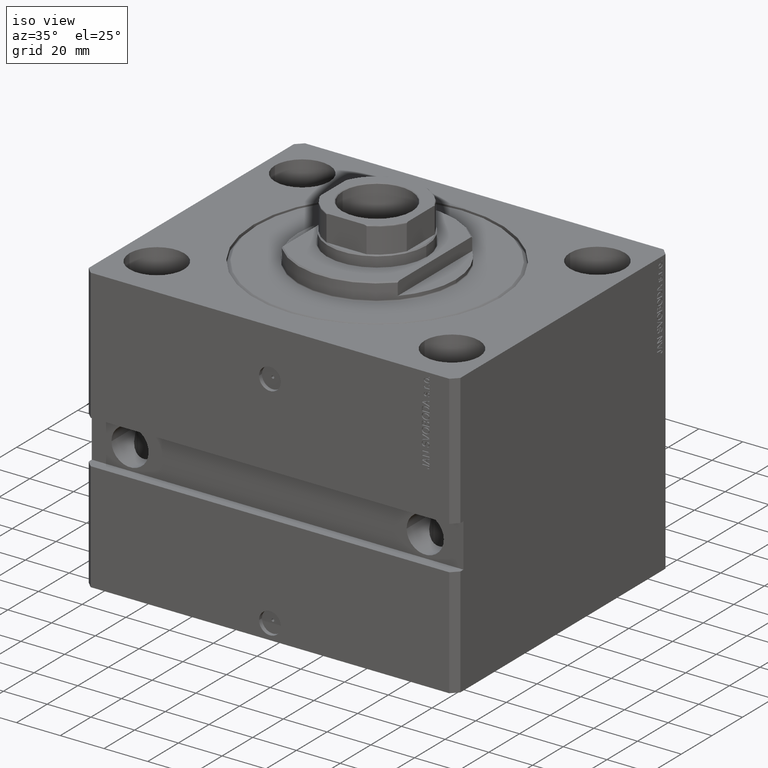
[diagram: clean part render]
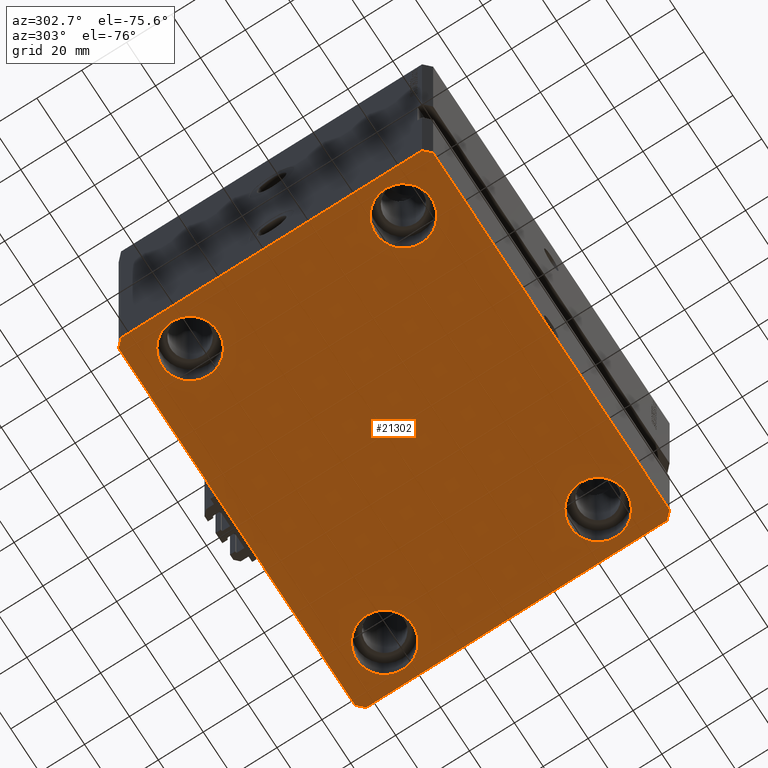
[diagram: tour spotlight — one face highlighted and labeled with its STEP entity id]
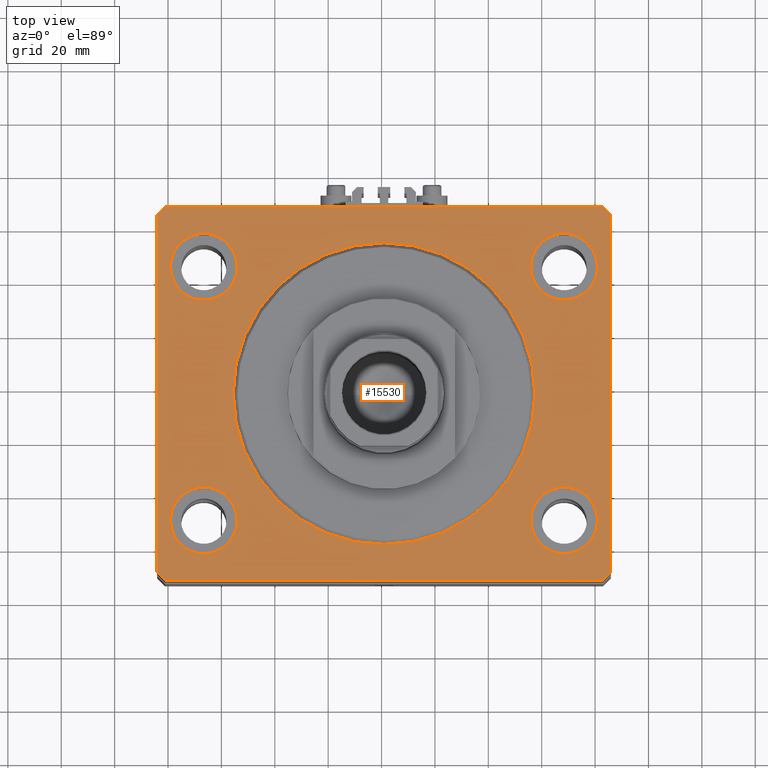
[diagram: tour spotlight — one face highlighted and labeled with its STEP entity id]
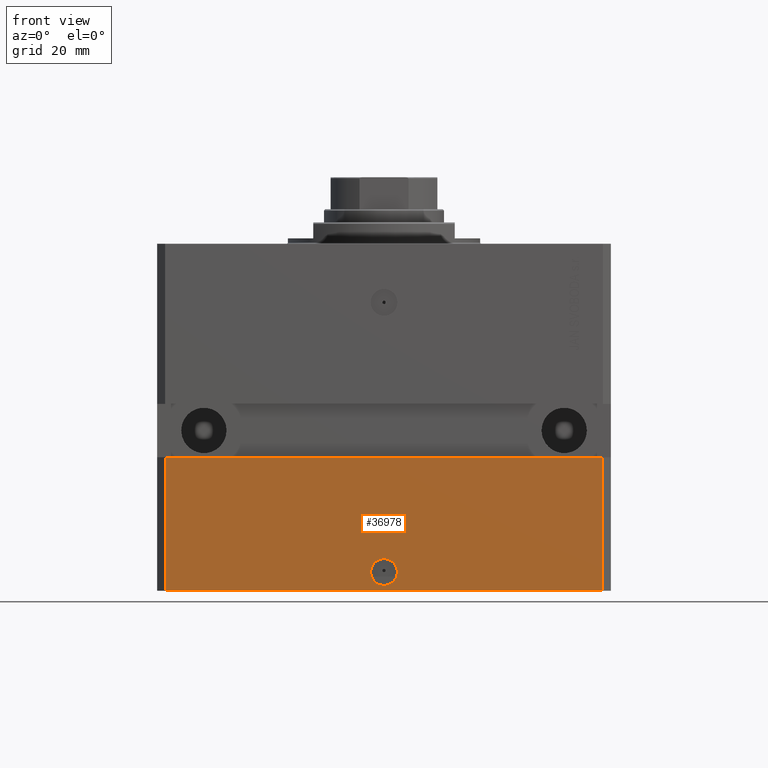
[diagram: tour spotlight — one face highlighted and labeled with its STEP entity id]
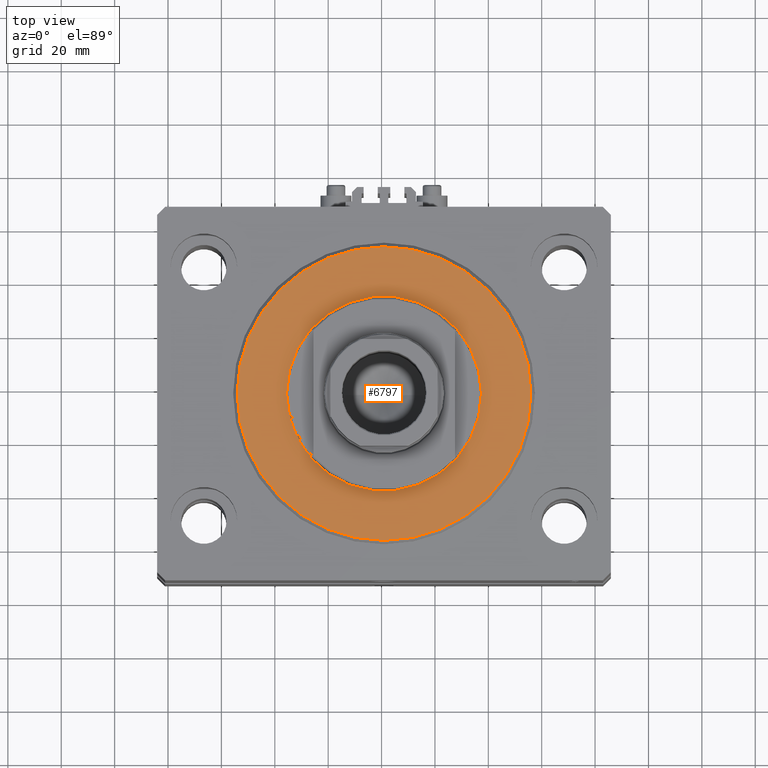
[diagram: tour spotlight — one face highlighted and labeled with its STEP entity id]
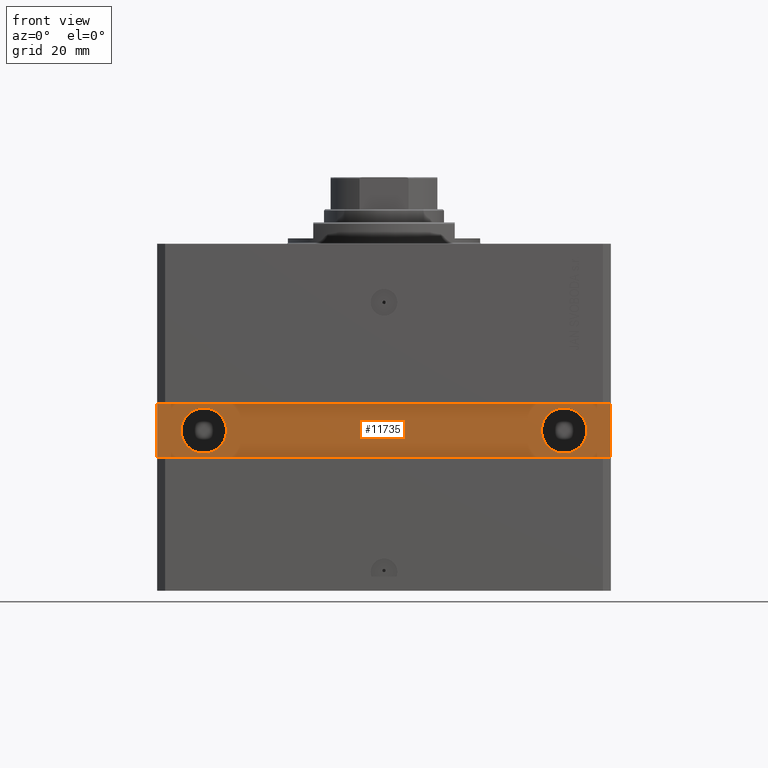
[diagram: tour spotlight — one face highlighted and labeled with its STEP entity id]
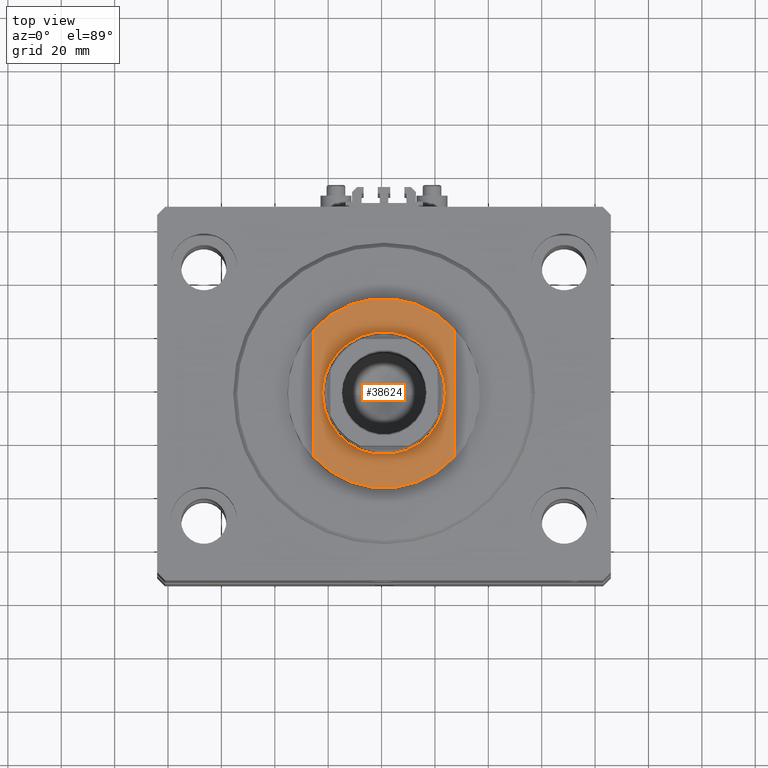
[diagram: tour spotlight — one face highlighted and labeled with its STEP entity id]
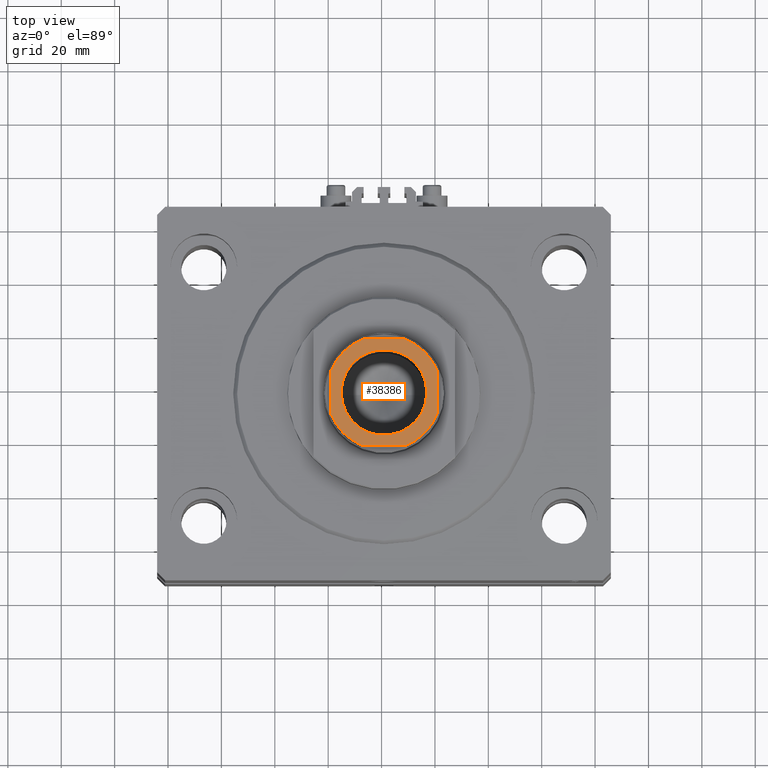
[diagram: tour spotlight — one face highlighted and labeled with its STEP entity id]
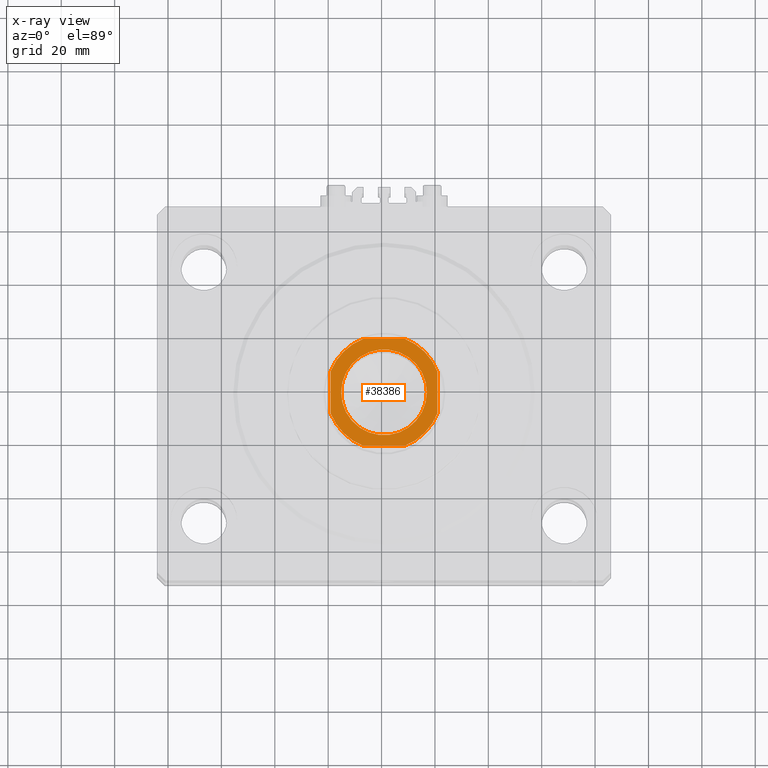
[diagram: x-ray of the same camera — body ghosted, this tour face saturated]
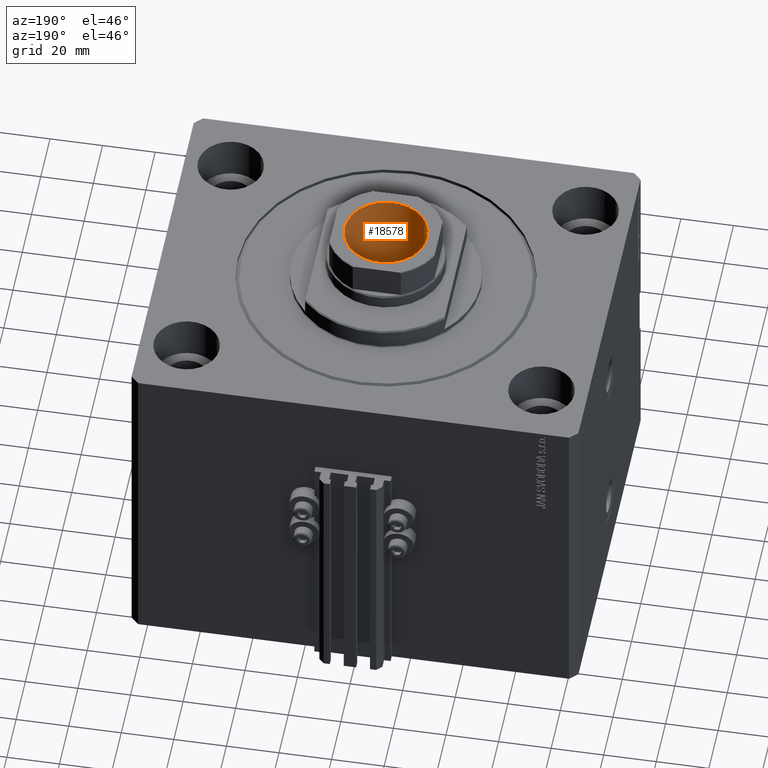
[diagram: tour spotlight — one face highlighted and labeled with its STEP entity id]
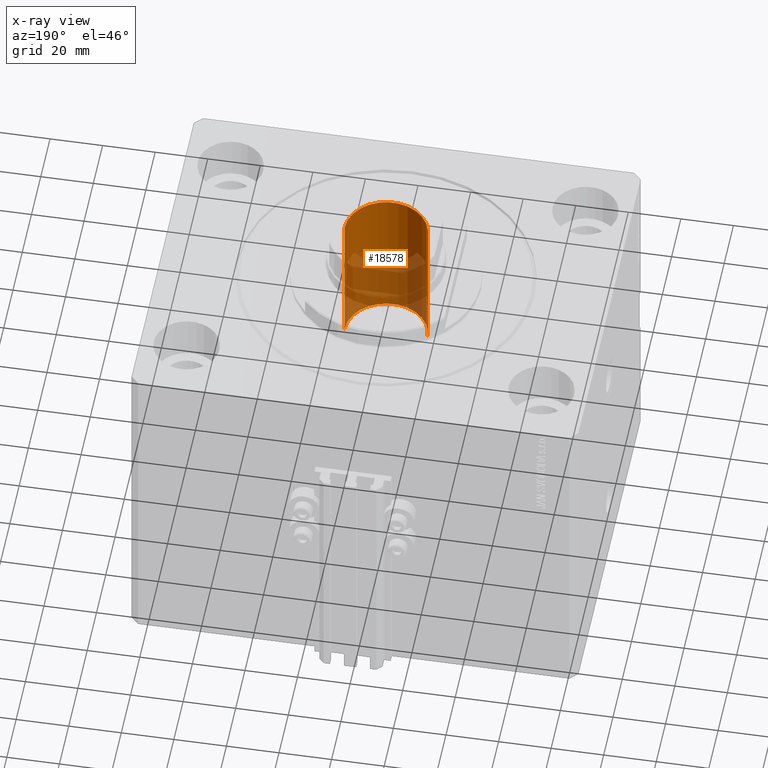
[diagram: x-ray of the same camera — body ghosted, this tour face saturated]
A machine part: a face-by-face anatomy tour. The part has 1103 B-rep faces; the first image is the clean iso view, then the 8 largest visible faces are spotlighted one at a time (largest first), each with its STEP entity span.

Face 1 — auxiliary view, entity #21302. In plain terms, the highlighted planar face has unit normal (0, 0, 1).
Definition (entity closure, byte-faithful):
#126 = CIRCLE ( 'NONE', #14240, 12.49999999999999645 ) ;
#755 = VERTEX_POINT ( 'NONE', #33347 ) ;
#820 = EDGE_CURVE ( 'NONE', #6404, #30067, #14982, .T. ) ;
#1061 = VECTOR ( 'NONE', #23541, 1000.000000000000114 ) ;
#2871 = LINE ( 'NONE', #24935, #35443 ) ;
#3644 = CIRCLE ( 'NONE', #15394, 12.49999999999999645 ) ;
#3896 = CARTESIAN_POINT ( 'NONE',  ( -80.00000000000000000, -47.50000000000000000, -130.0000000000000000 ) ) ;
#4188 = DIRECTION ( 'NONE',  ( 1.000000000000000000, 0.000000000000000000, 0.000000000000000000 ) ) ;
#4692 = DIRECTION ( 'NONE',  ( -0.000000000000000000, -0.000000000000000000, 1.000000000000000000 ) ) ;
#4784 = DIRECTION ( 'NONE',  ( 1.000000000000000000, 0.000000000000000000, 0.000000000000000000 ) ) ;
#5172 = CARTESIAN_POINT ( 'NONE',  ( 85.00000000000001421, -66.99999999999998579, -130.0000000000000000 ) ) ;
#5629 = ORIENTED_EDGE ( 'NONE', *, *, #44657, .F. ) ;
#6145 = EDGE_LOOP ( 'NONE', ( #17547, #14010, #34338, #14509, #13048, #22046, #6681, #5629 ) ) ;
#6204 = LINE ( 'NONE', #40716, #15349 ) ;
#6404 = VERTEX_POINT ( 'NONE', #10271 ) ;
#6652 = EDGE_LOOP ( 'NONE', ( #33247, #41164 ) ) ;
#6681 = ORIENTED_EDGE ( 'NONE', *, *, #14818, .F. ) ;
#6751 = DIRECTION ( 'NONE',  ( 0.000000000000000000, 0.000000000000000000, 1.000000000000000000 ) ) ;
#6989 = FACE_BOUND ( 'NONE', #6652, .T. ) ;
#7028 = DIRECTION ( 'NONE',  ( -0.000000000000000000, -0.000000000000000000, 1.000000000000000000 ) ) ;
#7244 = EDGE_CURVE ( 'NONE', #37119, #44837, #14453, .T. ) ;
#8643 = CARTESIAN_POINT ( 'NONE',  ( 55.00000000000000711, -47.50000000000000000, -130.0000000000000000 ) ) ;
#8830 = VERTEX_POINT ( 'NONE', #27813 ) ;
#9538 = CARTESIAN_POINT ( 'NONE',  ( -67.50000000000000000, 47.50000000000000000, -130.0000000000000000 ) ) ;
#9997 = CARTESIAN_POINT ( 'NONE',  ( -55.00000000000000711, -47.50000000000000000, -130.0000000000000000 ) ) ;
#10134 = DIRECTION ( 'NONE',  ( 0.7071067811865459074, 0.7071067811865491270, 0.000000000000000000 ) ) ;
#10271 = CARTESIAN_POINT ( 'NONE',  ( -82.00000000000001421, -70.00000000000000000, -130.0000000000000000 ) ) ;
#10525 = CARTESIAN_POINT ( 'NONE',  ( 67.50000000000000000, 47.50000000000001421, -130.0000000000000000 ) ) ;
#10552 = CIRCLE ( 'NONE', #25409, 12.49999999999999645 ) ;
#10770 = CARTESIAN_POINT ( 'NONE',  ( -82.00000000000000000, 70.00000000000000000, -130.0000000000000000 ) ) ;
#11248 = DIRECTION ( 'NONE',  ( -0.000000000000000000, -0.000000000000000000, 1.000000000000000000 ) ) ;
#11745 = CIRCLE ( 'NONE', #25797, 12.49999999999999645 ) ;
#11852 = CARTESIAN_POINT ( 'NONE',  ( -85.00000000000001421, -67.00000000000000000, -130.0000000000000000 ) ) ;
#11954 = EDGE_CURVE ( 'NONE', #41922, #8830, #3644, .T. ) ;
#12265 = AXIS2_PLACEMENT_3D ( 'NONE', #45113, #19410, #34815 ) ;
#12540 = CARTESIAN_POINT ( 'NONE',  ( 67.50000000000000000, -47.50000000000000000, -130.0000000000000000 ) ) ;
#13048 = ORIENTED_EDGE ( 'NONE', *, *, #820, .F. ) ;
#13160 = DIRECTION ( 'NONE',  ( 1.000000000000000000, 0.000000000000000000, 0.000000000000000000 ) ) ;
#13215 = VERTEX_POINT ( 'NONE', #36085 ) ;
#13689 = AXIS2_PLACEMENT_3D ( 'NONE', #32804, #11248, #44298 ) ;
#14010 = ORIENTED_EDGE ( 'NONE', *, *, #30799, .F. ) ;
#14206 = VERTEX_POINT ( 'NONE', #46308 ) ;
#14240 = AXIS2_PLACEMENT_3D ( 'NONE', #12540, #4692, #38979 ) ;
#14264 = VECTOR ( 'NONE', #10134, 1000.000000000000000 ) ;
#14453 = CIRCLE ( 'NONE', #13689, 12.49999999999999645 ) ;
#14509 = ORIENTED_EDGE ( 'NONE', *, *, #34551, .F. ) ;
#14635 = VERTEX_POINT ( 'NONE', #32934 ) ;
#14818 = EDGE_CURVE ( 'NONE', #16663, #45259, #6204, .T. ) ;
#14982 = LINE ( 'NONE', #18898, #22846 ) ;
#15171 = ORIENTED_EDGE ( 'NONE', *, *, #35130, .T. ) ;
#15349 = VECTOR ( 'NONE', #44381, 1000.000000000000000 ) ;
#15394 = AXIS2_PLACEMENT_3D ( 'NONE', #18299, #7028, #47461 ) ;
#15647 = LINE ( 'NONE', #10770, #32609 ) ;
#16663 = VERTEX_POINT ( 'NONE', #22184 ) ;
#16902 = VERTEX_POINT ( 'NONE', #46922 ) ;
#16959 = CIRCLE ( 'NONE', #12265, 12.49999999999999645 ) ;
#17027 = ORIENTED_EDGE ( 'NONE', *, *, #7244, .T. ) ;
#17215 = EDGE_LOOP ( 'NONE', ( #17027, #24939 ) ) ;
#17547 = ORIENTED_EDGE ( 'NONE', *, *, #48445, .F. ) ;
#18264 = CARTESIAN_POINT ( 'NONE',  ( 0.000000000000000000, 0.000000000000000000, -130.0000000000000000 ) ) ;
#18299 = CARTESIAN_POINT ( 'NONE',  ( 67.50000000000000000, -47.50000000000000000, -130.0000000000000000 ) ) ;
#18898 = CARTESIAN_POINT ( 'NONE',  ( -82.00000000000001421, -70.00000000000000000, -130.0000000000000000 ) ) ;
#19410 = DIRECTION ( 'NONE',  ( -0.000000000000000000, -0.000000000000000000, 1.000000000000000000 ) ) ;
#19739 = DIRECTION ( 'NONE',  ( -0.000000000000000000, -0.000000000000000000, 1.000000000000000000 ) ) ;
#20002 = VERTEX_POINT ( 'NONE', #5172 ) ;
#21055 = AXIS2_PLACEMENT_3D ( 'NONE', #18264, #6751, #37115 ) ;
#21302 = ADVANCED_FACE ( 'NONE', ( #26089, #6989, #26338, #40789, #40308 ), #29759, .F. ) ;
#21873 = ORIENTED_EDGE ( 'NONE', *, *, #37502, .T. ) ;
#22046 = ORIENTED_EDGE ( 'NONE', *, *, #39287, .F. ) ;
#22184 = CARTESIAN_POINT ( 'NONE',  ( -85.00000000000000000, 67.00000000000000000, -130.0000000000000000 ) ) ;
#22846 = VECTOR ( 'NONE', #4188, 1000.000000000000000 ) ;
#23541 = DIRECTION ( 'NONE',  ( 0.7071067811865474617, -0.7071067811865474617, 0.000000000000000000 ) ) ;
#23716 = EDGE_CURVE ( 'NONE', #755, #40904, #11745, .T. ) ;
#23815 = EDGE_LOOP ( 'NONE', ( #15171, #21873 ) ) ;
#24475 = DIRECTION ( 'NONE',  ( 1.000000000000000000, 0.000000000000000000, 0.000000000000000000 ) ) ;
#24935 = CARTESIAN_POINT ( 'NONE',  ( 85.00000000000001421, -66.99999999999998579, -130.0000000000000000 ) ) ;
#24939 = ORIENTED_EDGE ( 'NONE', *, *, #48098, .T. ) ;
#25409 = AXIS2_PLACEMENT_3D ( 'NONE', #40066, #42780, #13160 ) ;
#25797 = AXIS2_PLACEMENT_3D ( 'NONE', #10525, #47747, #29607 ) ;
#26089 = FACE_BOUND ( 'NONE', #17215, .T. ) ;
#26338 = FACE_BOUND ( 'NONE', #35755, .T. ) ;
#26371 = CARTESIAN_POINT ( 'NONE',  ( -67.50000000000000000, 47.50000000000000000, -130.0000000000000000 ) ) ;
#27648 = CIRCLE ( 'NONE', #36241, 12.49999999999999645 ) ;
#27727 = ORIENTED_EDGE ( 'NONE', *, *, #41372, .T. ) ;
#27813 = CARTESIAN_POINT ( 'NONE',  ( 80.00000000000000000, -47.50000000000000000, -130.0000000000000000 ) ) ;
#27905 = DIRECTION ( 'NONE',  ( -0.000000000000000000, -0.000000000000000000, 1.000000000000000000 ) ) ;
#28504 = LINE ( 'NONE', #43440, #14264 ) ;
#29607 = DIRECTION ( 'NONE',  ( 1.000000000000000000, 0.000000000000000000, 0.000000000000000000 ) ) ;
#29688 = CARTESIAN_POINT ( 'NONE',  ( 85.00000000000055422, 66.99999999999997158, -130.0000000000000000 ) ) ;
#29759 = PLANE ( 'NONE',  #21055 ) ;
#30067 = VERTEX_POINT ( 'NONE', #38234 ) ;
#30799 = EDGE_CURVE ( 'NONE', #45017, #16902, #37530, .T. ) ;
#30868 = EDGE_CURVE ( 'NONE', #8830, #41922, #126, .T. ) ;
#30994 = CARTESIAN_POINT ( 'NONE',  ( 85.00000000000055422, 66.99999999999997158, -130.0000000000000000 ) ) ;
#31018 = CARTESIAN_POINT ( 'NONE',  ( 80.00000000000000000, 47.50000000000001421, -130.0000000000000000 ) ) ;
#31126 = CARTESIAN_POINT ( 'NONE',  ( -85.00000000000001421, -67.00000000000000000, -130.0000000000000000 ) ) ;
#31416 = VECTOR ( 'NONE', #44866, 1000.000000000000000 ) ;
#32609 = VECTOR ( 'NONE', #40641, 1000.000000000000114 ) ;
#32804 = CARTESIAN_POINT ( 'NONE',  ( -67.50000000000000000, -47.50000000000000000, -130.0000000000000000 ) ) ;
#32934 = CARTESIAN_POINT ( 'NONE',  ( -55.00000000000000711, 47.50000000000000000, -130.0000000000000000 ) ) ;
#33247 = ORIENTED_EDGE ( 'NONE', *, *, #11954, .T. ) ;
#33347 = CARTESIAN_POINT ( 'NONE',  ( 55.00000000000000711, 47.50000000000001421, -130.0000000000000000 ) ) ;
#34131 = VECTOR ( 'NONE', #38124, 1000.000000000000000 ) ;
#34338 = ORIENTED_EDGE ( 'NONE', *, *, #36544, .F. ) ;
#34450 = LINE ( 'NONE', #46442, #34131 ) ;
#34551 = EDGE_CURVE ( 'NONE', #30067, #20002, #28504, .T. ) ;
#34815 = DIRECTION ( 'NONE',  ( 1.000000000000000000, 0.000000000000000000, 0.000000000000000000 ) ) ;
#35130 = EDGE_CURVE ( 'NONE', #14206, #14635, #47881, .T. ) ;
#35443 = VECTOR ( 'NONE', #39855, 1000.000000000000000 ) ;
#35755 = EDGE_LOOP ( 'NONE', ( #36337, #27727 ) ) ;
#36085 = CARTESIAN_POINT ( 'NONE',  ( -82.00000000000000000, 70.00000000000000000, -130.0000000000000000 ) ) ;
#36241 = AXIS2_PLACEMENT_3D ( 'NONE', #26371, #19739, #4784 ) ;
#36337 = ORIENTED_EDGE ( 'NONE', *, *, #23716, .T. ) ;
#36544 = EDGE_CURVE ( 'NONE', #20002, #45017, #2871, .T. ) ;
#37115 = DIRECTION ( 'NONE',  ( 1.000000000000000000, 0.000000000000000000, -0.000000000000000000 ) ) ;
#37119 = VERTEX_POINT ( 'NONE', #3896 ) ;
#37502 = EDGE_CURVE ( 'NONE', #14635, #14206, #27648, .T. ) ;
#37530 = LINE ( 'NONE', #29688, #31416 ) ;
#38124 = DIRECTION ( 'NONE',  ( -1.000000000000000000, -1.692413147294439807E-16, 0.000000000000000000 ) ) ;
#38234 = CARTESIAN_POINT ( 'NONE',  ( 82.00000000000001421, -70.00000000000000000, -130.0000000000000000 ) ) ;
#38979 = DIRECTION ( 'NONE',  ( 1.000000000000000000, 0.000000000000000000, 0.000000000000000000 ) ) ;
#39287 = EDGE_CURVE ( 'NONE', #45259, #6404, #46798, .T. ) ;
#39293 = AXIS2_PLACEMENT_3D ( 'NONE', #9538, #27905, #24475 ) ;
#39855 = DIRECTION ( 'NONE',  ( 3.935492064902608811E-15, 1.000000000000000000, 0.000000000000000000 ) ) ;
#40066 = CARTESIAN_POINT ( 'NONE',  ( 67.50000000000000000, 47.50000000000001421, -130.0000000000000000 ) ) ;
#40308 = FACE_OUTER_BOUND ( 'NONE', #6145, .T. ) ;
#40641 = DIRECTION ( 'NONE',  ( -0.7071067811865474617, -0.7071067811865474617, 0.000000000000000000 ) ) ;
#40716 = CARTESIAN_POINT ( 'NONE',  ( -85.00000000000000000, 67.00000000000000000, -130.0000000000000000 ) ) ;
#40789 = FACE_BOUND ( 'NONE', #23815, .T. ) ;
#40904 = VERTEX_POINT ( 'NONE', #31018 ) ;
#41164 = ORIENTED_EDGE ( 'NONE', *, *, #30868, .T. ) ;
#41372 = EDGE_CURVE ( 'NONE', #40904, #755, #10552, .T. ) ;
#41922 = VERTEX_POINT ( 'NONE', #8643 ) ;
#42780 = DIRECTION ( 'NONE',  ( -0.000000000000000000, -0.000000000000000000, 1.000000000000000000 ) ) ;
#43440 = CARTESIAN_POINT ( 'NONE',  ( 82.00000000000001421, -70.00000000000000000, -130.0000000000000000 ) ) ;
#44298 = DIRECTION ( 'NONE',  ( 1.000000000000000000, 0.000000000000000000, 0.000000000000000000 ) ) ;
#44381 = DIRECTION ( 'NONE',  ( -1.035655806553317576E-16, -1.000000000000000000, 0.000000000000000000 ) ) ;
#44657 = EDGE_CURVE ( 'NONE', #13215, #16663, #15647, .T. ) ;
#44837 = VERTEX_POINT ( 'NONE', #9997 ) ;
#44866 = DIRECTION ( 'NONE',  ( -0.7071067811865344721, 0.7071067811865606734, 0.000000000000000000 ) ) ;
#45017 = VERTEX_POINT ( 'NONE', #30994 ) ;
#45113 = CARTESIAN_POINT ( 'NONE',  ( -67.50000000000000000, -47.50000000000000000, -130.0000000000000000 ) ) ;
#45259 = VERTEX_POINT ( 'NONE', #11852 ) ;
#46308 = CARTESIAN_POINT ( 'NONE',  ( -80.00000000000000000, 47.50000000000000000, -130.0000000000000000 ) ) ;
#46442 = CARTESIAN_POINT ( 'NONE',  ( 82.00000000000059686, 70.00000000000002842, -130.0000000000000000 ) ) ;
#46798 = LINE ( 'NONE', #31126, #1061 ) ;
#46922 = CARTESIAN_POINT ( 'NONE',  ( 82.00000000000059686, 70.00000000000002842, -130.0000000000000000 ) ) ;
#47461 = DIRECTION ( 'NONE',  ( 1.000000000000000000, 0.000000000000000000, 0.000000000000000000 ) ) ;
#47747 = DIRECTION ( 'NONE',  ( -0.000000000000000000, -0.000000000000000000, 1.000000000000000000 ) ) ;
#47881 = CIRCLE ( 'NONE', #39293, 12.49999999999999645 ) ;
#48098 = EDGE_CURVE ( 'NONE', #44837, #37119, #16959, .T. ) ;
#48445 = EDGE_CURVE ( 'NONE', #16902, #13215, #34450, .T. ) ;

Face 2 — top view, entity #15530. In plain terms, the highlighted planar face has unit normal (0, 0, 1).
Definition (entity closure, byte-faithful):
#178 = DIRECTION ( 'NONE',  ( 0.000000000000000000, 0.000000000000000000, 1.000000000000000000 ) ) ;
#364 = EDGE_CURVE ( 'NONE', #15075, #17851, #37689, .T. ) ;
#386 = CARTESIAN_POINT ( 'NONE',  ( -85.00000000000001421, -67.00000000000000000, 0.000000000000000000 ) ) ;
#636 = EDGE_CURVE ( 'NONE', #42352, #37433, #15103, .T. ) ;
#915 = EDGE_CURVE ( 'NONE', #23503, #46445, #42378, .T. ) ;
#1128 = CARTESIAN_POINT ( 'NONE',  ( 82.00000000000001421, -70.00000000000000000, 0.000000000000000000 ) ) ;
#1524 = ORIENTED_EDGE ( 'NONE', *, *, #6071, .F. ) ;
#1777 = VECTOR ( 'NONE', #36517, 1000.000000000000000 ) ;
#2263 = ORIENTED_EDGE ( 'NONE', *, *, #7947, .T. ) ;
#2342 = DIRECTION ( 'NONE',  ( 3.935492064902608811E-15, 1.000000000000000000, 0.000000000000000000 ) ) ;
#2494 = CARTESIAN_POINT ( 'NONE',  ( 82.00000000000001421, -70.00000000000000000, 0.000000000000000000 ) ) ;
#3143 = VECTOR ( 'NONE', #47487, 1000.000000000000000 ) ;
#3598 = EDGE_CURVE ( 'NONE', #9366, #23503, #32221, .T. ) ;
#4637 = VERTEX_POINT ( 'NONE', #39288 ) ;
#4810 = VERTEX_POINT ( 'NONE', #5189 ) ;
#4843 = DIRECTION ( 'NONE',  ( 0.000000000000000000, 0.000000000000000000, 1.000000000000000000 ) ) ;
#5189 = CARTESIAN_POINT ( 'NONE',  ( -55.00000000000000711, -47.50000000000000000, 0.000000000000000000 ) ) ;
#5663 = EDGE_LOOP ( 'NONE', ( #11284, #2263, #25149, #35275, #24853, #8521, #13210, #35789 ) ) ;
#6071 = EDGE_CURVE ( 'NONE', #21047, #11102, #46473, .T. ) ;
#6086 = DIRECTION ( 'NONE',  ( 0.000000000000000000, 0.000000000000000000, 1.000000000000000000 ) ) ;
#6475 = CARTESIAN_POINT ( 'NONE',  ( 80.00000000000000000, -47.50000000000000000, 0.000000000000000000 ) ) ;
#7947 = EDGE_CURVE ( 'NONE', #4637, #39588, #42875, .T. ) ;
#8253 = DIRECTION ( 'NONE',  ( 0.000000000000000000, 0.000000000000000000, 1.000000000000000000 ) ) ;
#8372 = CARTESIAN_POINT ( 'NONE',  ( 85.00000000000001421, -66.99999999999998579, 0.000000000000000000 ) ) ;
#8521 = ORIENTED_EDGE ( 'NONE', *, *, #27576, .T. ) ;
#8734 = CARTESIAN_POINT ( 'NONE',  ( 67.50000000000000000, -47.50000000000000000, 0.000000000000000000 ) ) ;
#9009 = ORIENTED_EDGE ( 'NONE', *, *, #12958, .F. ) ;
#9273 = AXIS2_PLACEMENT_3D ( 'NONE', #40430, #39716, #9838 ) ;
#9366 = VERTEX_POINT ( 'NONE', #8372 ) ;
#9456 = EDGE_CURVE ( 'NONE', #13109, #4810, #20778, .T. ) ;
#9487 = ORIENTED_EDGE ( 'NONE', *, *, #13343, .F. ) ;
#9838 = DIRECTION ( 'NONE',  ( 1.000000000000000000, 0.000000000000000000, 0.000000000000000000 ) ) ;
#10707 = CIRCLE ( 'NONE', #29473, 12.49999999999999645 ) ;
#10793 = CARTESIAN_POINT ( 'NONE',  ( 67.50000000000000000, -47.50000000000000000, 0.000000000000000000 ) ) ;
#11102 = VERTEX_POINT ( 'NONE', #25850 ) ;
#11284 = ORIENTED_EDGE ( 'NONE', *, *, #39612, .T. ) ;
#11457 = CARTESIAN_POINT ( 'NONE',  ( 0.000000000000000000, 0.000000000000000000, 0.000000000000000000 ) ) ;
#11750 = CIRCLE ( 'NONE', #14866, 12.49999999999999645 ) ;
#11798 = DIRECTION ( 'NONE',  ( 0.000000000000000000, 0.000000000000000000, 1.000000000000000000 ) ) ;
#12005 = VERTEX_POINT ( 'NONE', #21742 ) ;
#12046 = CARTESIAN_POINT ( 'NONE',  ( -67.50000000000000000, -47.50000000000000000, 0.000000000000000000 ) ) ;
#12251 = EDGE_LOOP ( 'NONE', ( #12810, #31399 ) ) ;
#12493 = ORIENTED_EDGE ( 'NONE', *, *, #34149, .F. ) ;
#12810 = ORIENTED_EDGE ( 'NONE', *, *, #26476, .F. ) ;
#12958 = EDGE_CURVE ( 'NONE', #11102, #21047, #28602, .T. ) ;
#13109 = VERTEX_POINT ( 'NONE', #39284 ) ;
#13208 = DIRECTION ( 'NONE',  ( 1.000000000000000000, 0.000000000000000000, 0.000000000000000000 ) ) ;
#13210 = ORIENTED_EDGE ( 'NONE', *, *, #3598, .T. ) ;
#13290 = DIRECTION ( 'NONE',  ( 0.7071067811865459074, 0.7071067811865491270, 0.000000000000000000 ) ) ;
#13308 = EDGE_LOOP ( 'NONE', ( #38271, #37847 ) ) ;
#13343 = EDGE_CURVE ( 'NONE', #23099, #33614, #10707, .T. ) ;
#13392 = ORIENTED_EDGE ( 'NONE', *, *, #20690, .F. ) ;
#14004 = LINE ( 'NONE', #32840, #1777 ) ;
#14008 = LINE ( 'NONE', #2494, #29737 ) ;
#14547 = EDGE_LOOP ( 'NONE', ( #9487, #12493 ) ) ;
#14866 = AXIS2_PLACEMENT_3D ( 'NONE', #28756, #25566, #33141 ) ;
#14887 = DIRECTION ( 'NONE',  ( 1.000000000000000000, 0.000000000000000000, 0.000000000000000000 ) ) ;
#14899 = CARTESIAN_POINT ( 'NONE',  ( -56.50000000000000711, 6.919254415182546126E-15, 0.000000000000000000 ) ) ;
#15075 = VERTEX_POINT ( 'NONE', #39215 ) ;
#15103 = LINE ( 'NONE', #386, #43935 ) ;
#15530 = ADVANCED_FACE ( 'NONE', ( #44994, #34218, #40605, #45238, #37171, #26394 ), #21993, .T. ) ;
#15756 = AXIS2_PLACEMENT_3D ( 'NONE', #8734, #8253, #34925 ) ;
#16383 = DIRECTION ( 'NONE',  ( 1.000000000000000000, 0.000000000000000000, 0.000000000000000000 ) ) ;
#16594 = AXIS2_PLACEMENT_3D ( 'NONE', #38394, #4843, #41832 ) ;
#16631 = LINE ( 'NONE', #23974, #30045 ) ;
#16830 = VERTEX_POINT ( 'NONE', #1128 ) ;
#17188 = DIRECTION ( 'NONE',  ( 1.000000000000000000, 0.000000000000000000, 0.000000000000000000 ) ) ;
#17851 = VERTEX_POINT ( 'NONE', #43682 ) ;
#17905 = CIRCLE ( 'NONE', #20243, 12.49999999999999645 ) ;
#18650 = DIRECTION ( 'NONE',  ( 1.000000000000000000, 0.000000000000000000, 0.000000000000000000 ) ) ;
#20053 = CARTESIAN_POINT ( 'NONE',  ( -85.00000000000000000, 67.00000000000000000, 0.000000000000000000 ) ) ;
#20243 = AXIS2_PLACEMENT_3D ( 'NONE', #32050, #6086, #13208 ) ;
#20335 = EDGE_CURVE ( 'NONE', #4810, #13109, #17905, .T. ) ;
#20690 = EDGE_CURVE ( 'NONE', #43213, #12005, #21015, .T. ) ;
#20778 = CIRCLE ( 'NONE', #29364, 12.49999999999999645 ) ;
#21015 = CIRCLE ( 'NONE', #9273, 12.49999999999999645 ) ;
#21047 = VERTEX_POINT ( 'NONE', #14899 ) ;
#21280 = LINE ( 'NONE', #36209, #3143 ) ;
#21742 = CARTESIAN_POINT ( 'NONE',  ( 55.00000000000000711, 47.50000000000001421, 0.000000000000000000 ) ) ;
#21993 = PLANE ( 'NONE',  #46641 ) ;
#22389 = CARTESIAN_POINT ( 'NONE',  ( -82.00000000000000000, 70.00000000000000000, 0.000000000000000000 ) ) ;
#23099 = VERTEX_POINT ( 'NONE', #6475 ) ;
#23481 = DIRECTION ( 'NONE',  ( 0.000000000000000000, 0.000000000000000000, 1.000000000000000000 ) ) ;
#23503 = VERTEX_POINT ( 'NONE', #28715 ) ;
#23974 = CARTESIAN_POINT ( 'NONE',  ( 82.00000000000059686, 70.00000000000002842, 0.000000000000000000 ) ) ;
#24853 = ORIENTED_EDGE ( 'NONE', *, *, #32021, .T. ) ;
#25149 = ORIENTED_EDGE ( 'NONE', *, *, #25782, .T. ) ;
#25566 = DIRECTION ( 'NONE',  ( 0.000000000000000000, 0.000000000000000000, 1.000000000000000000 ) ) ;
#25782 = EDGE_CURVE ( 'NONE', #39588, #42352, #21280, .T. ) ;
#25850 = CARTESIAN_POINT ( 'NONE',  ( 56.50000000000000711, 0.000000000000000000, 0.000000000000000000 ) ) ;
#26230 = DIRECTION ( 'NONE',  ( 0.000000000000000000, 0.000000000000000000, 1.000000000000000000 ) ) ;
#26364 = AXIS2_PLACEMENT_3D ( 'NONE', #40834, #33490, #14887 ) ;
#26394 = FACE_OUTER_BOUND ( 'NONE', #5663, .T. ) ;
#26476 = EDGE_CURVE ( 'NONE', #17851, #15075, #11750, .T. ) ;
#27279 = CARTESIAN_POINT ( 'NONE',  ( 55.00000000000000711, -47.50000000000000000, 0.000000000000000000 ) ) ;
#27510 = VECTOR ( 'NONE', #45815, 1000.000000000000000 ) ;
#27576 = EDGE_CURVE ( 'NONE', #16830, #9366, #14008, .T. ) ;
#28547 = CARTESIAN_POINT ( 'NONE',  ( 85.00000000000001421, -66.99999999999998579, 0.000000000000000000 ) ) ;
#28602 = CIRCLE ( 'NONE', #26364, 56.50000000000000711 ) ;
#28715 = CARTESIAN_POINT ( 'NONE',  ( 85.00000000000055422, 66.99999999999997158, 0.000000000000000000 ) ) ;
#28756 = CARTESIAN_POINT ( 'NONE',  ( -67.50000000000000000, 47.50000000000000000, 0.000000000000000000 ) ) ;
#29364 = AXIS2_PLACEMENT_3D ( 'NONE', #12046, #11798, #42389 ) ;
#29473 = AXIS2_PLACEMENT_3D ( 'NONE', #10793, #47295, #17188 ) ;
#29737 = VECTOR ( 'NONE', #13290, 1000.000000000000000 ) ;
#30025 = DIRECTION ( 'NONE',  ( 0.7071067811865474617, -0.7071067811865474617, 0.000000000000000000 ) ) ;
#30045 = VECTOR ( 'NONE', #38907, 1000.000000000000000 ) ;
#30299 = DIRECTION ( 'NONE',  ( 1.000000000000000000, 0.000000000000000000, -0.000000000000000000 ) ) ;
#30582 = CARTESIAN_POINT ( 'NONE',  ( 67.50000000000000000, 47.50000000000001421, 0.000000000000000000 ) ) ;
#30618 = CIRCLE ( 'NONE', #15756, 12.49999999999999645 ) ;
#31304 = CARTESIAN_POINT ( 'NONE',  ( -82.00000000000001421, -70.00000000000000000, 0.000000000000000000 ) ) ;
#31399 = ORIENTED_EDGE ( 'NONE', *, *, #364, .F. ) ;
#32021 = EDGE_CURVE ( 'NONE', #37433, #16830, #14004, .T. ) ;
#32050 = CARTESIAN_POINT ( 'NONE',  ( -67.50000000000000000, -47.50000000000000000, 0.000000000000000000 ) ) ;
#32221 = LINE ( 'NONE', #28547, #47936 ) ;
#32840 = CARTESIAN_POINT ( 'NONE',  ( -82.00000000000001421, -70.00000000000000000, 0.000000000000000000 ) ) ;
#33090 = CARTESIAN_POINT ( 'NONE',  ( 0.000000000000000000, 0.000000000000000000, 0.000000000000000000 ) ) ;
#33141 = DIRECTION ( 'NONE',  ( 1.000000000000000000, 0.000000000000000000, 0.000000000000000000 ) ) ;
#33167 = EDGE_CURVE ( 'NONE', #12005, #43213, #38441, .T. ) ;
#33490 = DIRECTION ( 'NONE',  ( 0.000000000000000000, 0.000000000000000000, 1.000000000000000000 ) ) ;
#33614 = VERTEX_POINT ( 'NONE', #27279 ) ;
#34149 = EDGE_CURVE ( 'NONE', #33614, #23099, #30618, .T. ) ;
#34218 = FACE_BOUND ( 'NONE', #14547, .T. ) ;
#34925 = DIRECTION ( 'NONE',  ( 1.000000000000000000, 0.000000000000000000, 0.000000000000000000 ) ) ;
#35275 = ORIENTED_EDGE ( 'NONE', *, *, #636, .T. ) ;
#35349 = CARTESIAN_POINT ( 'NONE',  ( 82.00000000000059686, 70.00000000000002842, 0.000000000000000000 ) ) ;
#35789 = ORIENTED_EDGE ( 'NONE', *, *, #915, .T. ) ;
#36209 = CARTESIAN_POINT ( 'NONE',  ( -85.00000000000000000, 67.00000000000000000, 0.000000000000000000 ) ) ;
#36517 = DIRECTION ( 'NONE',  ( 1.000000000000000000, 0.000000000000000000, 0.000000000000000000 ) ) ;
#37171 = FACE_BOUND ( 'NONE', #47828, .T. ) ;
#37433 = VERTEX_POINT ( 'NONE', #31304 ) ;
#37436 = CARTESIAN_POINT ( 'NONE',  ( 80.00000000000000000, 47.50000000000001421, 0.000000000000000000 ) ) ;
#37566 = DIRECTION ( 'NONE',  ( -0.7071067811865474617, -0.7071067811865474617, 0.000000000000000000 ) ) ;
#37689 = CIRCLE ( 'NONE', #16594, 12.49999999999999645 ) ;
#37847 = ORIENTED_EDGE ( 'NONE', *, *, #9456, .F. ) ;
#38271 = ORIENTED_EDGE ( 'NONE', *, *, #20335, .F. ) ;
#38394 = CARTESIAN_POINT ( 'NONE',  ( -67.50000000000000000, 47.50000000000000000, 0.000000000000000000 ) ) ;
#38441 = CIRCLE ( 'NONE', #46277, 12.49999999999999645 ) ;
#38907 = DIRECTION ( 'NONE',  ( -1.000000000000000000, -1.692413147294439807E-16, 0.000000000000000000 ) ) ;
#39039 = EDGE_LOOP ( 'NONE', ( #13392, #48339 ) ) ;
#39215 = CARTESIAN_POINT ( 'NONE',  ( -80.00000000000000000, 47.50000000000000000, 0.000000000000000000 ) ) ;
#39284 = CARTESIAN_POINT ( 'NONE',  ( -80.00000000000000000, -47.50000000000000000, 0.000000000000000000 ) ) ;
#39288 = CARTESIAN_POINT ( 'NONE',  ( -82.00000000000000000, 70.00000000000000000, 0.000000000000000000 ) ) ;
#39588 = VERTEX_POINT ( 'NONE', #20053 ) ;
#39612 = EDGE_CURVE ( 'NONE', #46445, #4637, #16631, .T. ) ;
#39716 = DIRECTION ( 'NONE',  ( 0.000000000000000000, 0.000000000000000000, 1.000000000000000000 ) ) ;
#40430 = CARTESIAN_POINT ( 'NONE',  ( 67.50000000000000000, 47.50000000000001421, 0.000000000000000000 ) ) ;
#40605 = FACE_BOUND ( 'NONE', #39039, .T. ) ;
#40834 = CARTESIAN_POINT ( 'NONE',  ( 0.000000000000000000, 0.000000000000000000, 0.000000000000000000 ) ) ;
#41002 = AXIS2_PLACEMENT_3D ( 'NONE', #33090, #26230, #18650 ) ;
#41832 = DIRECTION ( 'NONE',  ( 1.000000000000000000, 0.000000000000000000, 0.000000000000000000 ) ) ;
#41895 = CARTESIAN_POINT ( 'NONE',  ( 85.00000000000055422, 66.99999999999997158, 0.000000000000000000 ) ) ;
#42352 = VERTEX_POINT ( 'NONE', #44767 ) ;
#42378 = LINE ( 'NONE', #41895, #27510 ) ;
#42389 = DIRECTION ( 'NONE',  ( 1.000000000000000000, 0.000000000000000000, 0.000000000000000000 ) ) ;
#42585 = VECTOR ( 'NONE', #37566, 1000.000000000000114 ) ;
#42875 = LINE ( 'NONE', #22389, #42585 ) ;
#43213 = VERTEX_POINT ( 'NONE', #37436 ) ;
#43682 = CARTESIAN_POINT ( 'NONE',  ( -55.00000000000000711, 47.50000000000000000, 0.000000000000000000 ) ) ;
#43935 = VECTOR ( 'NONE', #30025, 1000.000000000000114 ) ;
#44767 = CARTESIAN_POINT ( 'NONE',  ( -85.00000000000001421, -67.00000000000000000, 0.000000000000000000 ) ) ;
#44994 = FACE_BOUND ( 'NONE', #13308, .T. ) ;
#45238 = FACE_BOUND ( 'NONE', #12251, .T. ) ;
#45815 = DIRECTION ( 'NONE',  ( -0.7071067811865344721, 0.7071067811865606734, 0.000000000000000000 ) ) ;
#46277 = AXIS2_PLACEMENT_3D ( 'NONE', #30582, #23481, #16383 ) ;
#46445 = VERTEX_POINT ( 'NONE', #35349 ) ;
#46473 = CIRCLE ( 'NONE', #41002, 56.50000000000000711 ) ;
#46641 = AXIS2_PLACEMENT_3D ( 'NONE', #11457, #178, #30299 ) ;
#47295 = DIRECTION ( 'NONE',  ( 0.000000000000000000, 0.000000000000000000, 1.000000000000000000 ) ) ;
#47487 = DIRECTION ( 'NONE',  ( -1.035655806553317576E-16, -1.000000000000000000, 0.000000000000000000 ) ) ;
#47828 = EDGE_LOOP ( 'NONE', ( #9009, #1524 ) ) ;
#47936 = VECTOR ( 'NONE', #2342, 1000.000000000000000 ) ;
#48339 = ORIENTED_EDGE ( 'NONE', *, *, #33167, .F. ) ;

Face 3 — front view, entity #36978. In plain terms, the highlighted planar face has unit normal (0, -1, 0).
Definition (entity closure, byte-faithful):
#502 = CIRCLE ( 'NONE', #23971, 5.000000000000006217 ) ;
#820 = EDGE_CURVE ( 'NONE', #6404, #30067, #14982, .T. ) ;
#1812 = CARTESIAN_POINT ( 'NONE',  ( -5.000000000000006217, -70.00000000000000000, -123.0000000000000000 ) ) ;
#3198 = CARTESIAN_POINT ( 'NONE',  ( -82.00000000000000000, -70.00000000000001421, -80.00000000000001421 ) ) ;
#4188 = DIRECTION ( 'NONE',  ( 1.000000000000000000, 0.000000000000000000, 0.000000000000000000 ) ) ;
#4382 = VECTOR ( 'NONE', #41980, 1000.000000000000000 ) ;
#4492 = FACE_OUTER_BOUND ( 'NONE', #30778, .T. ) ;
#4600 = VERTEX_POINT ( 'NONE', #1812 ) ;
#5143 = VERTEX_POINT ( 'NONE', #3198 ) ;
#5506 = ORIENTED_EDGE ( 'NONE', *, *, #19518, .F. ) ;
#6404 = VERTEX_POINT ( 'NONE', #10271 ) ;
#7213 = VECTOR ( 'NONE', #43045, 1000.000000000000000 ) ;
#7926 = PLANE ( 'NONE',  #16680 ) ;
#9376 = DIRECTION ( 'NONE',  ( 1.176083712526788232E-16, -1.000000000000000000, 0.000000000000000000 ) ) ;
#9520 = DIRECTION ( 'NONE',  ( 0.000000000000000000, 0.000000000000000000, 1.000000000000000000 ) ) ;
#9611 = CARTESIAN_POINT ( 'NONE',  ( 0.000000000000000000, -70.00000000000000000, -123.0000000000000000 ) ) ;
#10271 = CARTESIAN_POINT ( 'NONE',  ( -82.00000000000001421, -70.00000000000000000, -130.0000000000000000 ) ) ;
#11453 = CARTESIAN_POINT ( 'NONE',  ( 82.00000000000001421, -69.99999999999998579, -80.00000000000001421 ) ) ;
#12058 = CARTESIAN_POINT ( 'NONE',  ( 5.000000000000006217, -70.00000000000000000, -123.0000000000000000 ) ) ;
#12786 = CARTESIAN_POINT ( 'NONE',  ( 0.000000000000000000, -70.00000000000000000, -123.0000000000000000 ) ) ;
#14975 = VERTEX_POINT ( 'NONE', #12058 ) ;
#14982 = LINE ( 'NONE', #18898, #22846 ) ;
#15761 = DIRECTION ( 'NONE',  ( 0.000000000000000000, -0.000000000000000000, -1.000000000000000000 ) ) ;
#16271 = CARTESIAN_POINT ( 'NONE',  ( 82.00000000000001421, -70.00000000000000000, -130.0000000000000000 ) ) ;
#16612 = LINE ( 'NONE', #35696, #7213 ) ;
#16680 = AXIS2_PLACEMENT_3D ( 'NONE', #22875, #22144, #15761 ) ;
#18838 = ORIENTED_EDGE ( 'NONE', *, *, #820, .T. ) ;
#18898 = CARTESIAN_POINT ( 'NONE',  ( -82.00000000000001421, -70.00000000000000000, -130.0000000000000000 ) ) ;
#18945 = ORIENTED_EDGE ( 'NONE', *, *, #47683, .T. ) ;
#19183 = EDGE_CURVE ( 'NONE', #4600, #14975, #38169, .T. ) ;
#19518 = EDGE_CURVE ( 'NONE', #6404, #5143, #32044, .T. ) ;
#20373 = DIRECTION ( 'NONE',  ( 1.176083712526788232E-16, -1.000000000000000000, 0.000000000000000000 ) ) ;
#20634 = DIRECTION ( 'NONE',  ( 1.000000000000000000, 0.000000000000000000, 0.000000000000000000 ) ) ;
#21820 = ORIENTED_EDGE ( 'NONE', *, *, #19183, .F. ) ;
#22144 = DIRECTION ( 'NONE',  ( 0.000000000000000000, -1.000000000000000000, 0.000000000000000000 ) ) ;
#22846 = VECTOR ( 'NONE', #4188, 1000.000000000000000 ) ;
#22875 = CARTESIAN_POINT ( 'NONE',  ( -82.00000000000001421, -70.00000000000000000, -130.0000000000000000 ) ) ;
#23525 = EDGE_LOOP ( 'NONE', ( #33094, #21820 ) ) ;
#23971 = AXIS2_PLACEMENT_3D ( 'NONE', #12786, #20373, #32770 ) ;
#25097 = VERTEX_POINT ( 'NONE', #11453 ) ;
#30067 = VERTEX_POINT ( 'NONE', #38234 ) ;
#30778 = EDGE_LOOP ( 'NONE', ( #39045, #5506, #18838, #18945 ) ) ;
#32044 = LINE ( 'NONE', #43304, #44417 ) ;
#32770 = DIRECTION ( 'NONE',  ( 1.000000000000000000, 0.000000000000000000, 0.000000000000000000 ) ) ;
#33094 = ORIENTED_EDGE ( 'NONE', *, *, #48227, .F. ) ;
#35377 = EDGE_CURVE ( 'NONE', #5143, #25097, #16612, .T. ) ;
#35696 = CARTESIAN_POINT ( 'NONE',  ( -85.00000000000001421, -70.00000000000001421, -80.00000000000001421 ) ) ;
#36978 = ADVANCED_FACE ( 'NONE', ( #38042, #4492 ), #7926, .T. ) ;
#38042 = FACE_BOUND ( 'NONE', #23525, .T. ) ;
#38169 = CIRCLE ( 'NONE', #43659, 5.000000000000006217 ) ;
#38234 = CARTESIAN_POINT ( 'NONE',  ( 82.00000000000001421, -70.00000000000000000, -130.0000000000000000 ) ) ;
#39045 = ORIENTED_EDGE ( 'NONE', *, *, #35377, .F. ) ;
#41980 = DIRECTION ( 'NONE',  ( 0.000000000000000000, 0.000000000000000000, 1.000000000000000000 ) ) ;
#43045 = DIRECTION ( 'NONE',  ( 1.000000000000000000, 1.632680918566406300E-16, 0.000000000000000000 ) ) ;
#43304 = CARTESIAN_POINT ( 'NONE',  ( -82.00000000000001421, -70.00000000000000000, -130.0000000000000000 ) ) ;
#43659 = AXIS2_PLACEMENT_3D ( 'NONE', #9611, #9376, #20634 ) ;
#44417 = VECTOR ( 'NONE', #9520, 1000.000000000000000 ) ;
#45410 = LINE ( 'NONE', #16271, #4382 ) ;
#47683 = EDGE_CURVE ( 'NONE', #30067, #25097, #45410, .T. ) ;
#48227 = EDGE_CURVE ( 'NONE', #14975, #4600, #502, .T. ) ;

Face 4 — top view, entity #6797. In plain terms, the highlighted planar face has unit normal (0, 0, -1).
Definition (entity closure, byte-faithful):
#1378 = EDGE_CURVE ( 'NONE', #37983, #23179, #34581, .T. ) ;
#1529 = DIRECTION ( 'NONE',  ( 1.000000000000000000, 0.000000000000000000, -0.000000000000000000 ) ) ;
#3368 = CARTESIAN_POINT ( 'NONE',  ( 0.000000000000000000, 0.000000000000000000, 0.000000000000000000 ) ) ;
#4827 = ORIENTED_EDGE ( 'NONE', *, *, #13791, .T. ) ;
#5453 = CARTESIAN_POINT ( 'NONE',  ( 0.000000000000000000, 0.000000000000000000, 0.000000000000000000 ) ) ;
#6797 = ADVANCED_FACE ( 'NONE', ( #12334, #19912 ), #45626, .F. ) ;
#8300 = DIRECTION ( 'NONE',  ( -0.000000000000000000, -0.000000000000000000, -1.000000000000000000 ) ) ;
#8303 = EDGE_CURVE ( 'NONE', #47858, #28093, #35586, .T. ) ;
#12334 = FACE_BOUND ( 'NONE', #17742, .T. ) ;
#13118 = ORIENTED_EDGE ( 'NONE', *, *, #40740, .T. ) ;
#13791 = EDGE_CURVE ( 'NONE', #23179, #37983, #15315, .T. ) ;
#14387 = CARTESIAN_POINT ( 'NONE',  ( 0.000000000000000000, 0.000000000000000000, 0.000000000000000000 ) ) ;
#14562 = CARTESIAN_POINT ( 'NONE',  ( -36.50000000000000000, 4.469960816887838430E-15, -2.168404344971008868E-16 ) ) ;
#14632 = DIRECTION ( 'NONE',  ( 0.000000000000000000, 0.000000000000000000, 1.000000000000000000 ) ) ;
#15315 = CIRCLE ( 'NONE', #24733, 36.50000000000000000 ) ;
#15884 = CARTESIAN_POINT ( 'NONE',  ( 0.000000000000000000, 0.000000000000000000, 0.000000000000000000 ) ) ;
#17356 = AXIS2_PLACEMENT_3D ( 'NONE', #14387, #14632, #29304 ) ;
#17742 = EDGE_LOOP ( 'NONE', ( #35729, #4827 ) ) ;
#19912 = FACE_OUTER_BOUND ( 'NONE', #35986, .T. ) ;
#20676 = AXIS2_PLACEMENT_3D ( 'NONE', #5453, #23826, #1529 ) ;
#23179 = VERTEX_POINT ( 'NONE', #14562 ) ;
#23243 = DIRECTION ( 'NONE',  ( 1.000000000000000000, 0.000000000000000000, 0.000000000000000000 ) ) ;
#23826 = DIRECTION ( 'NONE',  ( 0.000000000000000000, 0.000000000000000000, 1.000000000000000000 ) ) ;
#23856 = CARTESIAN_POINT ( 'NONE',  ( 55.00000000000002132, 0.000000000000000000, 0.000000000000000000 ) ) ;
#24186 = CARTESIAN_POINT ( 'NONE',  ( -55.00000000000002132, 6.827405905246494765E-15, 0.000000000000000000 ) ) ;
#24645 = AXIS2_PLACEMENT_3D ( 'NONE', #3368, #33245, #44501 ) ;
#24733 = AXIS2_PLACEMENT_3D ( 'NONE', #33976, #41088, #48201 ) ;
#26998 = AXIS2_PLACEMENT_3D ( 'NONE', #15884, #8300, #23243 ) ;
#28093 = VERTEX_POINT ( 'NONE', #24186 ) ;
#29304 = DIRECTION ( 'NONE',  ( 1.000000000000000000, 0.000000000000000000, 0.000000000000000000 ) ) ;
#30929 = ORIENTED_EDGE ( 'NONE', *, *, #8303, .T. ) ;
#33245 = DIRECTION ( 'NONE',  ( -0.000000000000000000, -0.000000000000000000, -1.000000000000000000 ) ) ;
#33976 = CARTESIAN_POINT ( 'NONE',  ( 0.000000000000000000, 0.000000000000000000, 0.000000000000000000 ) ) ;
#34581 = CIRCLE ( 'NONE', #17356, 36.50000000000000000 ) ;
#35586 = CIRCLE ( 'NONE', #26998, 55.00000000000002132 ) ;
#35729 = ORIENTED_EDGE ( 'NONE', *, *, #1378, .T. ) ;
#35986 = EDGE_LOOP ( 'NONE', ( #30929, #13118 ) ) ;
#37983 = VERTEX_POINT ( 'NONE', #48057 ) ;
#38686 = CIRCLE ( 'NONE', #24645, 55.00000000000002132 ) ;
#40740 = EDGE_CURVE ( 'NONE', #28093, #47858, #38686, .T. ) ;
#41088 = DIRECTION ( 'NONE',  ( 0.000000000000000000, 0.000000000000000000, 1.000000000000000000 ) ) ;
#44501 = DIRECTION ( 'NONE',  ( 1.000000000000000000, 0.000000000000000000, 0.000000000000000000 ) ) ;
#45626 = PLANE ( 'NONE',  #20676 ) ;
#47858 = VERTEX_POINT ( 'NONE', #23856 ) ;
#48057 = CARTESIAN_POINT ( 'NONE',  ( 36.50000000000000000, 0.000000000000000000, -2.168404344971008868E-16 ) ) ;
#48201 = DIRECTION ( 'NONE',  ( 1.000000000000000000, 0.000000000000000000, 0.000000000000000000 ) ) ;

Face 5 — front view, entity #11735. In plain terms, the highlighted planar face has unit normal (0, -1, 0).
Definition (entity closure, byte-faithful):
#292 = EDGE_LOOP ( 'NONE', ( #17805, #20371, #44570, #19716 ) ) ;
#2529 = DIRECTION ( 'NONE',  ( -1.000000000000000000, -1.632680918566406300E-16, -2.449021377849609204E-16 ) ) ;
#3086 = CARTESIAN_POINT ( 'NONE',  ( 85.00000000000001421, -64.99999999999998579, -80.00000000000001421 ) ) ;
#3204 = ORIENTED_EDGE ( 'NONE', *, *, #11733, .F. ) ;
#4144 = VECTOR ( 'NONE', #25819, 1000.000000000000000 ) ;
#4439 = FACE_BOUND ( 'NONE', #24708, .T. ) ;
#5099 = CARTESIAN_POINT ( 'NONE',  ( -58.99999999999997868, -65.00000000000001421, -70.00000000000001421 ) ) ;
#7385 = FACE_OUTER_BOUND ( 'NONE', #292, .T. ) ;
#7480 = DIRECTION ( 'NONE',  ( 0.000000000000000000, 0.000000000000000000, 1.000000000000000000 ) ) ;
#7495 = EDGE_CURVE ( 'NONE', #36689, #29352, #16790, .T. ) ;
#7499 = CARTESIAN_POINT ( 'NONE',  ( 59.00000000000003553, -64.99999999999998579, -70.00000000000000000 ) ) ;
#8120 = DIRECTION ( 'NONE',  ( 1.101411730780568590E-16, -1.000000000000000000, 0.000000000000000000 ) ) ;
#8336 = AXIS2_PLACEMENT_3D ( 'NONE', #33107, #18669, #44367 ) ;
#9955 = CARTESIAN_POINT ( 'NONE',  ( -85.00000000000001421, -65.00000000000001421, -80.00000000000001421 ) ) ;
#10172 = EDGE_CURVE ( 'NONE', #25977, #42459, #43432, .T. ) ;
#11733 = EDGE_CURVE ( 'NONE', #35676, #33200, #27911, .T. ) ;
#11735 = ADVANCED_FACE ( 'NONE', ( #23062, #4439, #7385 ), #22334, .T. ) ;
#11776 = CARTESIAN_POINT ( 'NONE',  ( -67.49999999999997158, -65.00000000000001421, -70.00000000000001421 ) ) ;
#12339 = EDGE_CURVE ( 'NONE', #42459, #20512, #36787, .T. ) ;
#12615 = VERTEX_POINT ( 'NONE', #23309 ) ;
#12939 = DIRECTION ( 'NONE',  ( 1.041232428609250764E-16, -1.000000000000000000, -6.162975822039154730E-33 ) ) ;
#14068 = CARTESIAN_POINT ( 'NONE',  ( -85.00000000000001421, -65.00000000000001421, -60.00000000000002842 ) ) ;
#14891 = ORIENTED_EDGE ( 'NONE', *, *, #27704, .F. ) ;
#15687 = DIRECTION ( 'NONE',  ( 1.101411730780568590E-16, -1.000000000000000000, 0.000000000000000000 ) ) ;
#16487 = CARTESIAN_POINT ( 'NONE',  ( -75.99999999999997158, -65.00000000000001421, -70.00000000000001421 ) ) ;
#16790 = CIRCLE ( 'NONE', #48077, 8.499999999999992895 ) ;
#17805 = ORIENTED_EDGE ( 'NONE', *, *, #36823, .T. ) ;
#18669 = DIRECTION ( 'NONE',  ( 1.632680918566406300E-16, -1.000000000000000000, 0.000000000000000000 ) ) ;
#19314 = VECTOR ( 'NONE', #44373, 1000.000000000000000 ) ;
#19532 = CARTESIAN_POINT ( 'NONE',  ( 85.00000000000001421, -64.99999999999998579, -59.99999999999998579 ) ) ;
#19716 = ORIENTED_EDGE ( 'NONE', *, *, #12339, .T. ) ;
#20371 = ORIENTED_EDGE ( 'NONE', *, *, #32508, .T. ) ;
#20512 = VERTEX_POINT ( 'NONE', #9955 ) ;
#21711 = LINE ( 'NONE', #3086, #26710 ) ;
#22026 = ORIENTED_EDGE ( 'NONE', *, *, #7495, .F. ) ;
#22334 = PLANE ( 'NONE',  #8336 ) ;
#22393 = AXIS2_PLACEMENT_3D ( 'NONE', #34148, #30229, #42218 ) ;
#23062 = FACE_BOUND ( 'NONE', #33688, .T. ) ;
#23309 = CARTESIAN_POINT ( 'NONE',  ( 85.00000000000001421, -64.99999999999998579, -80.00000000000001421 ) ) ;
#23884 = CARTESIAN_POINT ( 'NONE',  ( 76.00000000000002842, -64.99999999999998579, -70.00000000000000000 ) ) ;
#24197 = CARTESIAN_POINT ( 'NONE',  ( 67.50000000000002842, -64.99999999999998579, -70.00000000000000000 ) ) ;
#24708 = EDGE_LOOP ( 'NONE', ( #14891, #3204 ) ) ;
#25770 = CARTESIAN_POINT ( 'NONE',  ( -85.00000000000001421, -65.00000000000001421, -60.00000000000002842 ) ) ;
#25819 = DIRECTION ( 'NONE',  ( 1.000000000000000000, 1.632680918566406300E-16, 0.000000000000000000 ) ) ;
#25977 = VERTEX_POINT ( 'NONE', #19532 ) ;
#26710 = VECTOR ( 'NONE', #7480, 1000.000000000000000 ) ;
#27704 = EDGE_CURVE ( 'NONE', #33200, #35676, #36805, .T. ) ;
#27911 = CIRCLE ( 'NONE', #48221, 8.500000000000000000 ) ;
#29352 = VERTEX_POINT ( 'NONE', #23884 ) ;
#30229 = DIRECTION ( 'NONE',  ( 1.041232428609250764E-16, -1.000000000000000000, -6.162975822039154730E-33 ) ) ;
#30620 = DIRECTION ( 'NONE',  ( 1.000000000000000000, 0.000000000000000000, 0.000000000000000000 ) ) ;
#32508 = EDGE_CURVE ( 'NONE', #12615, #25977, #21711, .T. ) ;
#33107 = CARTESIAN_POINT ( 'NONE',  ( 1.084072457370145048E-14, -65.00000000000000000, 0.000000000000000000 ) ) ;
#33200 = VERTEX_POINT ( 'NONE', #5099 ) ;
#33688 = EDGE_LOOP ( 'NONE', ( #40679, #22026 ) ) ;
#34148 = CARTESIAN_POINT ( 'NONE',  ( 67.50000000000002842, -64.99999999999998579, -70.00000000000000000 ) ) ;
#35676 = VERTEX_POINT ( 'NONE', #16487 ) ;
#36689 = VERTEX_POINT ( 'NONE', #7499 ) ;
#36787 = LINE ( 'NONE', #25770, #19314 ) ;
#36805 = CIRCLE ( 'NONE', #43067, 8.500000000000000000 ) ;
#36823 = EDGE_CURVE ( 'NONE', #20512, #12615, #36839, .T. ) ;
#36839 = LINE ( 'NONE', #40756, #4144 ) ;
#39993 = CARTESIAN_POINT ( 'NONE',  ( 85.00000000000001421, -64.99999999999998579, -59.99999999999998579 ) ) ;
#40679 = ORIENTED_EDGE ( 'NONE', *, *, #47763, .F. ) ;
#40756 = CARTESIAN_POINT ( 'NONE',  ( -85.00000000000001421, -65.00000000000001421, -80.00000000000001421 ) ) ;
#40941 = DIRECTION ( 'NONE',  ( 1.000000000000000000, 0.000000000000000000, 0.000000000000000000 ) ) ;
#41665 = CARTESIAN_POINT ( 'NONE',  ( -67.49999999999997158, -65.00000000000001421, -70.00000000000001421 ) ) ;
#41882 = VECTOR ( 'NONE', #2529, 1000.000000000000000 ) ;
#41959 = CIRCLE ( 'NONE', #22393, 8.499999999999992895 ) ;
#42218 = DIRECTION ( 'NONE',  ( 1.000000000000000000, 0.000000000000000000, 0.000000000000000000 ) ) ;
#42459 = VERTEX_POINT ( 'NONE', #14068 ) ;
#43067 = AXIS2_PLACEMENT_3D ( 'NONE', #11776, #15687, #30620 ) ;
#43287 = DIRECTION ( 'NONE',  ( 1.000000000000000000, 0.000000000000000000, 0.000000000000000000 ) ) ;
#43432 = LINE ( 'NONE', #39993, #41882 ) ;
#44367 = DIRECTION ( 'NONE',  ( 1.000000000000000000, 1.632680918566406300E-16, 0.000000000000000000 ) ) ;
#44373 = DIRECTION ( 'NONE',  ( 0.000000000000000000, 0.000000000000000000, -1.000000000000000000 ) ) ;
#44570 = ORIENTED_EDGE ( 'NONE', *, *, #10172, .T. ) ;
#47763 = EDGE_CURVE ( 'NONE', #29352, #36689, #41959, .T. ) ;
#48077 = AXIS2_PLACEMENT_3D ( 'NONE', #24197, #12939, #43287 ) ;
#48221 = AXIS2_PLACEMENT_3D ( 'NONE', #41665, #8120, #40941 ) ;

Face 6 — top view, entity #38624. In plain terms, the highlighted planar face has unit normal (0, 0, 1).
Definition (entity closure, byte-faithful):
#1567 = AXIS2_PLACEMENT_3D ( 'NONE', #41940, #7671, #23338 ) ;
#2088 = AXIS2_PLACEMENT_3D ( 'NONE', #8582, #16409, #20079 ) ;
#2236 = ORIENTED_EDGE ( 'NONE', *, *, #24324, .T. ) ;
#4481 = EDGE_CURVE ( 'NONE', #43033, #27351, #44444, .T. ) ;
#6879 = ORIENTED_EDGE ( 'NONE', *, *, #46736, .T. ) ;
#7141 = VECTOR ( 'NONE', #45957, 1000.000000000000000 ) ;
#7642 = CARTESIAN_POINT ( 'NONE',  ( 23.00000000000000355, 2.816687638038912746E-15, -8.000000000000000000 ) ) ;
#7671 = DIRECTION ( 'NONE',  ( 0.000000000000000000, 0.000000000000000000, -1.000000000000000000 ) ) ;
#7901 = ORIENTED_EDGE ( 'NONE', *, *, #26596, .T. ) ;
#8582 = CARTESIAN_POINT ( 'NONE',  ( 0.000000000000000000, 0.000000000000000000, -8.000000000000000000 ) ) ;
#9106 = DIRECTION ( 'NONE',  ( -1.000000000000000000, 0.000000000000000000, 0.000000000000000000 ) ) ;
#9321 = VERTEX_POINT ( 'NONE', #7642 ) ;
#10345 = DIRECTION ( 'NONE',  ( -1.000000000000000000, 0.000000000000000000, 0.000000000000000000 ) ) ;
#10774 = CARTESIAN_POINT ( 'NONE',  ( 0.000000000000000000, 0.000000000000000000, -8.000000000000000000 ) ) ;
#12187 = EDGE_LOOP ( 'NONE', ( #31533, #2236 ) ) ;
#14005 = ORIENTED_EDGE ( 'NONE', *, *, #34178, .T. ) ;
#14293 = CARTESIAN_POINT ( 'NONE',  ( 26.50000000000000000, 23.62202362203541739, -8.000000000000000000 ) ) ;
#14592 = DIRECTION ( 'NONE',  ( -0.000000000000000000, -1.000000000000000000, -0.000000000000000000 ) ) ;
#15659 = AXIS2_PLACEMENT_3D ( 'NONE', #47571, #29192, #10345 ) ;
#16220 = EDGE_CURVE ( 'NONE', #20273, #9321, #28708, .T. ) ;
#16409 = DIRECTION ( 'NONE',  ( -0.000000000000000000, -0.000000000000000000, 1.000000000000000000 ) ) ;
#16420 = CARTESIAN_POINT ( 'NONE',  ( -26.50000000000000000, 23.62202362203541739, -8.000000000000000000 ) ) ;
#16937 = DIRECTION ( 'NONE',  ( 0.000000000000000000, 0.000000000000000000, -1.000000000000000000 ) ) ;
#20079 = DIRECTION ( 'NONE',  ( -1.000000000000000000, 0.000000000000000000, 0.000000000000000000 ) ) ;
#20273 = VERTEX_POINT ( 'NONE', #23980 ) ;
#20348 = CIRCLE ( 'NONE', #15659, 23.00000000000000355 ) ;
#22691 = CIRCLE ( 'NONE', #1567, 35.49999999999999289 ) ;
#23001 = FACE_OUTER_BOUND ( 'NONE', #37232, .T. ) ;
#23338 = DIRECTION ( 'NONE',  ( -1.000000000000000000, 0.000000000000000000, 0.000000000000000000 ) ) ;
#23980 = CARTESIAN_POINT ( 'NONE',  ( -23.00000000000000355, 0.000000000000000000, -8.000000000000000000 ) ) ;
#24013 = CIRCLE ( 'NONE', #26276, 35.49999999999999289 ) ;
#24324 = EDGE_CURVE ( 'NONE', #9321, #20273, #20348, .T. ) ;
#24469 = CARTESIAN_POINT ( 'NONE',  ( 26.50000000000000000, -23.62202362203541739, -8.000000000000000000 ) ) ;
#26276 = AXIS2_PLACEMENT_3D ( 'NONE', #43124, #16937, #9106 ) ;
#26596 = EDGE_CURVE ( 'NONE', #43033, #34633, #22691, .T. ) ;
#27351 = VERTEX_POINT ( 'NONE', #33388 ) ;
#27828 = CARTESIAN_POINT ( 'NONE',  ( 26.50000000000000000, -36.36963018783666257, -8.000000000000000000 ) ) ;
#28708 = CIRCLE ( 'NONE', #2088, 23.00000000000000355 ) ;
#29192 = DIRECTION ( 'NONE',  ( -0.000000000000000000, -0.000000000000000000, 1.000000000000000000 ) ) ;
#31330 = VERTEX_POINT ( 'NONE', #24469 ) ;
#31533 = ORIENTED_EDGE ( 'NONE', *, *, #16220, .T. ) ;
#33388 = CARTESIAN_POINT ( 'NONE',  ( -26.50000000000000000, -23.62202362203541739, -8.000000000000000000 ) ) ;
#34178 = EDGE_CURVE ( 'NONE', #34633, #31330, #38596, .T. ) ;
#34633 = VERTEX_POINT ( 'NONE', #14293 ) ;
#35987 = ORIENTED_EDGE ( 'NONE', *, *, #4481, .F. ) ;
#37232 = EDGE_LOOP ( 'NONE', ( #7901, #14005, #6879, #35987 ) ) ;
#37590 = CARTESIAN_POINT ( 'NONE',  ( -26.50000000000000000, -36.36963018783666257, -8.000000000000000000 ) ) ;
#37929 = DIRECTION ( 'NONE',  ( -1.000000000000000000, 0.000000000000000000, -0.000000000000000000 ) ) ;
#38596 = LINE ( 'NONE', #27828, #7141 ) ;
#38624 = ADVANCED_FACE ( 'NONE', ( #41599, #23001 ), #44795, .T. ) ;
#39381 = VECTOR ( 'NONE', #14592, 1000.000000000000000 ) ;
#40885 = DIRECTION ( 'NONE',  ( 0.000000000000000000, 0.000000000000000000, -1.000000000000000000 ) ) ;
#41599 = FACE_BOUND ( 'NONE', #12187, .T. ) ;
#41940 = CARTESIAN_POINT ( 'NONE',  ( 0.000000000000000000, 0.000000000000000000, -8.000000000000000000 ) ) ;
#43033 = VERTEX_POINT ( 'NONE', #16420 ) ;
#43124 = CARTESIAN_POINT ( 'NONE',  ( 0.000000000000000000, 0.000000000000000000, -8.000000000000000000 ) ) ;
#44444 = LINE ( 'NONE', #37590, #39381 ) ;
#44795 = PLANE ( 'NONE',  #47224 ) ;
#45957 = DIRECTION ( 'NONE',  ( 0.000000000000000000, -1.000000000000000000, -0.000000000000000000 ) ) ;
#46736 = EDGE_CURVE ( 'NONE', #31330, #27351, #24013, .T. ) ;
#47224 = AXIS2_PLACEMENT_3D ( 'NONE', #10774, #40885, #37929 ) ;
#47571 = CARTESIAN_POINT ( 'NONE',  ( 0.000000000000000000, 0.000000000000000000, -8.000000000000000000 ) ) ;

Face 7 — top view, entity #38386. An x-ray twin of the same camera follows (body ghosted, this face saturated) — the face is partly hidden behind the body. In plain terms, the highlighted planar face has unit normal (0, 0, 1).
Definition (entity closure, byte-faithful):
#757 = EDGE_CURVE ( 'NONE', #45027, #38626, #7868, .T. ) ;
#1071 = DIRECTION ( 'NONE',  ( -0.000000000000000000, 0.000000000000000000, 1.000000000000000000 ) ) ;
#1289 = CARTESIAN_POINT ( 'NONE',  ( -20.00000000000000000, -20.00000000000000000, 126.0000000000000000 ) ) ;
#1297 = AXIS2_PLACEMENT_3D ( 'NONE', #42384, #38961, #42148 ) ;
#1789 = DIRECTION ( 'NONE',  ( 8.673617379884035472E-17, -1.000000000000000000, 0.000000000000000000 ) ) ;
#1873 = EDGE_CURVE ( 'NONE', #38920, #20837, #20172, .T. ) ;
#3162 = CARTESIAN_POINT ( 'NONE',  ( 0.000000000000000000, 0.000000000000000000, 126.0000000000000000 ) ) ;
#4042 = CIRCLE ( 'NONE', #21252, 16.05000000000006466 ) ;
#5450 = VERTEX_POINT ( 'NONE', #44036 ) ;
#5720 = CARTESIAN_POINT ( 'NONE',  ( 0.000000000000000000, 0.000000000000000000, 126.0000000000000000 ) ) ;
#6004 = EDGE_CURVE ( 'NONE', #5450, #10799, #39960, .T. ) ;
#6773 = CIRCLE ( 'NONE', #18530, 16.05000000000006466 ) ;
#6843 = FACE_OUTER_BOUND ( 'NONE', #10023, .T. ) ;
#7145 = CIRCLE ( 'NONE', #35303, 21.50000000000000000 ) ;
#7868 = LINE ( 'NONE', #33101, #13480 ) ;
#8888 = LINE ( 'NONE', #1289, #44525 ) ;
#10002 = CARTESIAN_POINT ( 'NONE',  ( 0.000000000000000000, 0.000000000000000000, 126.0000000000000000 ) ) ;
#10023 = EDGE_LOOP ( 'NONE', ( #15861, #17066, #43510, #19893, #32138, #45983, #46585, #15947 ) ) ;
#10078 = EDGE_CURVE ( 'NONE', #38626, #5450, #14517, .T. ) ;
#10532 = FACE_BOUND ( 'NONE', #36351, .T. ) ;
#10731 = VERTEX_POINT ( 'NONE', #14657 ) ;
#10799 = VERTEX_POINT ( 'NONE', #30775 ) ;
#11407 = ORIENTED_EDGE ( 'NONE', *, *, #33269, .T. ) ;
#11780 = EDGE_CURVE ( 'NONE', #10731, #45027, #23185, .T. ) ;
#13480 = VECTOR ( 'NONE', #48295, 1000.000000000000000 ) ;
#13764 = CARTESIAN_POINT ( 'NONE',  ( 0.000000000000000000, 0.000000000000000000, 126.0000000000000000 ) ) ;
#13922 = DIRECTION ( 'NONE',  ( 1.000000000000000000, 0.000000000000000000, 0.000000000000000000 ) ) ;
#14517 = CIRCLE ( 'NONE', #30162, 21.50000000000000000 ) ;
#14657 = CARTESIAN_POINT ( 'NONE',  ( 7.889866919029745240, -20.00000000000000000, 126.0000000000000000 ) ) ;
#15818 = CARTESIAN_POINT ( 'NONE',  ( 20.00000000000000000, -7.889866919029739911, 126.0000000000000000 ) ) ;
#15861 = ORIENTED_EDGE ( 'NONE', *, *, #1873, .T. ) ;
#15934 = EDGE_CURVE ( 'NONE', #25918, #38510, #6773, .T. ) ;
#15947 = ORIENTED_EDGE ( 'NONE', *, *, #28825, .T. ) ;
#16153 = CARTESIAN_POINT ( 'NONE',  ( -20.00000000000000355, -7.889866919029736358, 126.0000000000000000 ) ) ;
#16254 = CARTESIAN_POINT ( 'NONE',  ( -20.00000000000000355, 20.00000000000000000, 126.0000000000000000 ) ) ;
#17066 = ORIENTED_EDGE ( 'NONE', *, *, #24008, .T. ) ;
#17997 = CIRCLE ( 'NONE', #43796, 21.50000000000000000 ) ;
#18062 = CARTESIAN_POINT ( 'NONE',  ( -20.00000000000000355, 7.889866919029741688, 126.0000000000000000 ) ) ;
#18530 = AXIS2_PLACEMENT_3D ( 'NONE', #13764, #33325, #43856 ) ;
#18960 = CARTESIAN_POINT ( 'NONE',  ( 0.000000000000000000, 0.000000000000000000, 126.0000000000000000 ) ) ;
#19893 = ORIENTED_EDGE ( 'NONE', *, *, #11780, .T. ) ;
#20172 = LINE ( 'NONE', #16254, #46331 ) ;
#20837 = VERTEX_POINT ( 'NONE', #16153 ) ;
#21252 = AXIS2_PLACEMENT_3D ( 'NONE', #10002, #43775, #13922 ) ;
#21355 = CARTESIAN_POINT ( 'NONE',  ( -20.00000000000000355, 20.00000000000000000, 126.0000000000000000 ) ) ;
#21421 = AXIS2_PLACEMENT_3D ( 'NONE', #39442, #43601, #24997 ) ;
#21551 = PLANE ( 'NONE',  #21421 ) ;
#22021 = DIRECTION ( 'NONE',  ( -0.000000000000000000, 0.000000000000000000, 1.000000000000000000 ) ) ;
#22571 = EDGE_CURVE ( 'NONE', #23796, #10731, #8888, .T. ) ;
#22874 = DIRECTION ( 'NONE',  ( -0.000000000000000000, 0.000000000000000000, 1.000000000000000000 ) ) ;
#23185 = CIRCLE ( 'NONE', #1297, 21.50000000000000000 ) ;
#23796 = VERTEX_POINT ( 'NONE', #42496 ) ;
#24008 = EDGE_CURVE ( 'NONE', #20837, #23796, #17997, .T. ) ;
#24997 = DIRECTION ( 'NONE',  ( 1.000000000000000000, 0.000000000000000000, 0.000000000000000000 ) ) ;
#25918 = VERTEX_POINT ( 'NONE', #37416 ) ;
#28825 = EDGE_CURVE ( 'NONE', #10799, #38920, #7145, .T. ) ;
#29855 = CARTESIAN_POINT ( 'NONE',  ( 16.05000000000006466, 0.000000000000000000, 126.0000000000000000 ) ) ;
#30162 = AXIS2_PLACEMENT_3D ( 'NONE', #5720, #1071, #35593 ) ;
#30775 = CARTESIAN_POINT ( 'NONE',  ( -7.889866919029745240, 20.00000000000000000, 126.0000000000000000 ) ) ;
#31901 = DIRECTION ( 'NONE',  ( -1.000000000000000000, -0.000000000000000000, -0.000000000000000000 ) ) ;
#32119 = ORIENTED_EDGE ( 'NONE', *, *, #15934, .T. ) ;
#32138 = ORIENTED_EDGE ( 'NONE', *, *, #757, .T. ) ;
#33101 = CARTESIAN_POINT ( 'NONE',  ( 19.99999999999999645, 20.00000000000000000, 126.0000000000000000 ) ) ;
#33269 = EDGE_CURVE ( 'NONE', #38510, #25918, #4042, .T. ) ;
#33325 = DIRECTION ( 'NONE',  ( 0.000000000000000000, -0.000000000000000000, -1.000000000000000000 ) ) ;
#33758 = DIRECTION ( 'NONE',  ( 1.000000000000000000, 0.000000000000000000, 0.000000000000000000 ) ) ;
#35303 = AXIS2_PLACEMENT_3D ( 'NONE', #3162, #22021, #33758 ) ;
#35593 = DIRECTION ( 'NONE',  ( 1.000000000000000000, 0.000000000000000000, 0.000000000000000000 ) ) ;
#36351 = EDGE_LOOP ( 'NONE', ( #11407, #32119 ) ) ;
#37416 = CARTESIAN_POINT ( 'NONE',  ( -16.05000000000006466, 1.965558112631510093E-15, 126.0000000000000000 ) ) ;
#38386 = ADVANCED_FACE ( 'NONE', ( #10532, #6843 ), #21551, .T. ) ;
#38510 = VERTEX_POINT ( 'NONE', #29855 ) ;
#38626 = VERTEX_POINT ( 'NONE', #41128 ) ;
#38920 = VERTEX_POINT ( 'NONE', #18062 ) ;
#38961 = DIRECTION ( 'NONE',  ( -0.000000000000000000, 0.000000000000000000, 1.000000000000000000 ) ) ;
#39442 = CARTESIAN_POINT ( 'NONE',  ( 0.000000000000000000, 0.000000000000000000, 126.0000000000000000 ) ) ;
#39960 = LINE ( 'NONE', #21355, #43357 ) ;
#41128 = CARTESIAN_POINT ( 'NONE',  ( 20.00000000000000000, 7.889866919029748793, 126.0000000000000000 ) ) ;
#42148 = DIRECTION ( 'NONE',  ( 1.000000000000000000, 0.000000000000000000, 0.000000000000000000 ) ) ;
#42384 = CARTESIAN_POINT ( 'NONE',  ( 0.000000000000000000, 0.000000000000000000, 126.0000000000000000 ) ) ;
#42496 = CARTESIAN_POINT ( 'NONE',  ( -7.889866919029745240, -20.00000000000000000, 126.0000000000000000 ) ) ;
#43357 = VECTOR ( 'NONE', #31901, 1000.000000000000000 ) ;
#43510 = ORIENTED_EDGE ( 'NONE', *, *, #22571, .T. ) ;
#43601 = DIRECTION ( 'NONE',  ( -0.000000000000000000, 0.000000000000000000, 1.000000000000000000 ) ) ;
#43775 = DIRECTION ( 'NONE',  ( 0.000000000000000000, -0.000000000000000000, -1.000000000000000000 ) ) ;
#43796 = AXIS2_PLACEMENT_3D ( 'NONE', #18960, #22874, #45390 ) ;
#43856 = DIRECTION ( 'NONE',  ( 1.000000000000000000, 0.000000000000000000, 0.000000000000000000 ) ) ;
#44036 = CARTESIAN_POINT ( 'NONE',  ( 7.889866919029743464, 20.00000000000000000, 126.0000000000000000 ) ) ;
#44525 = VECTOR ( 'NONE', #47256, 1000.000000000000000 ) ;
#45027 = VERTEX_POINT ( 'NONE', #15818 ) ;
#45390 = DIRECTION ( 'NONE',  ( 1.000000000000000000, 0.000000000000000000, 0.000000000000000000 ) ) ;
#45983 = ORIENTED_EDGE ( 'NONE', *, *, #10078, .T. ) ;
#46331 = VECTOR ( 'NONE', #1789, 1000.000000000000000 ) ;
#46585 = ORIENTED_EDGE ( 'NONE', *, *, #6004, .T. ) ;
#47256 = DIRECTION ( 'NONE',  ( 1.000000000000000000, 0.000000000000000000, 0.000000000000000000 ) ) ;
#48295 = DIRECTION ( 'NONE',  ( -1.734723475976807094E-16, 1.000000000000000000, -0.000000000000000000 ) ) ;

Face 8 — auxiliary view, entity #18578. An x-ray twin of the same camera follows (body ghosted, this face saturated) — the face is partly hidden behind the body. In plain terms, the highlighted cylindrical surface (partial cylindrical patch) has radius 15.75 mm, axis along (0, 0, 1).
Definition (entity closure, byte-faithful):
#2616 = DIRECTION ( 'NONE',  ( 0.000000000000000000, 0.000000000000000000, 1.000000000000000000 ) ) ;
#3343 = VECTOR ( 'NONE', #12381, 1000.000000000000000 ) ;
#3389 = CARTESIAN_POINT ( 'NONE',  ( 0.000000000000000000, 0.000000000000000000, 126.0000000000000000 ) ) ;
#6039 = ORIENTED_EDGE ( 'NONE', *, *, #44296, .T. ) ;
#8868 = CARTESIAN_POINT ( 'NONE',  ( 15.74999999999999289, 0.000000000000000000, 125.6999999999999176 ) ) ;
#9653 = EDGE_CURVE ( 'NONE', #30307, #35238, #28606, .T. ) ;
#11919 = CARTESIAN_POINT ( 'NONE',  ( -15.74999999999998934, 1.928818708657080161E-15, 71.00000000000001421 ) ) ;
#12219 = ORIENTED_EDGE ( 'NONE', *, *, #32685, .F. ) ;
#12381 = DIRECTION ( 'NONE',  ( -0.000000000000000000, -0.000000000000000000, 1.000000000000000000 ) ) ;
#14426 = ORIENTED_EDGE ( 'NONE', *, *, #28231, .T. ) ;
#14427 = DIRECTION ( 'NONE',  ( 1.000000000000000000, 0.000000000000000000, 0.000000000000000000 ) ) ;
#16920 = VECTOR ( 'NONE', #32150, 1000.000000000000000 ) ;
#18336 = CYLINDRICAL_SURFACE ( 'NONE', #29536, 15.74999999999999289 ) ;
#18578 = ADVANCED_FACE ( 'NONE', ( #36946 ), #18336, .F. ) ;
#19239 = CARTESIAN_POINT ( 'NONE',  ( 15.74999999999999289, 0.000000000000000000, 126.0000000000000000 ) ) ;
#21845 = LINE ( 'NONE', #28473, #16920 ) ;
#23873 = LINE ( 'NONE', #19239, #3343 ) ;
#25715 = DIRECTION ( 'NONE',  ( -0.000000000000000000, -0.000000000000000000, 1.000000000000000000 ) ) ;
#25909 = EDGE_LOOP ( 'NONE', ( #43525, #6039, #14426, #12219 ) ) ;
#28231 = EDGE_CURVE ( 'NONE', #34115, #48209, #28249, .T. ) ;
#28249 = CIRCLE ( 'NONE', #33697, 15.74999999999999289 ) ;
#28295 = CARTESIAN_POINT ( 'NONE',  ( 15.74999999999998934, 0.000000000000000000, 71.00000000000001421 ) ) ;
#28473 = CARTESIAN_POINT ( 'NONE',  ( -15.74999999999999289, 1.928818708657080556E-15, 126.0000000000000000 ) ) ;
#28606 = CIRCLE ( 'NONE', #37204, 15.74999999999998934 ) ;
#29536 = AXIS2_PLACEMENT_3D ( 'NONE', #3389, #44766, #14427 ) ;
#29771 = CARTESIAN_POINT ( 'NONE',  ( 0.000000000000000000, 0.000000000000000000, 125.6999999999999176 ) ) ;
#30046 = CARTESIAN_POINT ( 'NONE',  ( -15.74999999999999289, 1.928818708657080556E-15, 125.6999999999999176 ) ) ;
#30307 = VERTEX_POINT ( 'NONE', #11919 ) ;
#32150 = DIRECTION ( 'NONE',  ( -0.000000000000000000, -0.000000000000000000, 1.000000000000000000 ) ) ;
#32685 = EDGE_CURVE ( 'NONE', #35238, #48209, #23873, .T. ) ;
#33697 = AXIS2_PLACEMENT_3D ( 'NONE', #29771, #2616, #48399 ) ;
#34115 = VERTEX_POINT ( 'NONE', #30046 ) ;
#35238 = VERTEX_POINT ( 'NONE', #28295 ) ;
#36946 = FACE_OUTER_BOUND ( 'NONE', #25909, .T. ) ;
#36977 = CARTESIAN_POINT ( 'NONE',  ( 0.000000000000000000, 0.000000000000000000, 71.00000000000001421 ) ) ;
#37204 = AXIS2_PLACEMENT_3D ( 'NONE', #36977, #25715, #37696 ) ;
#37696 = DIRECTION ( 'NONE',  ( 1.000000000000000000, 0.000000000000000000, 0.000000000000000000 ) ) ;
#43525 = ORIENTED_EDGE ( 'NONE', *, *, #9653, .F. ) ;
#44296 = EDGE_CURVE ( 'NONE', #30307, #34115, #21845, .T. ) ;
#44766 = DIRECTION ( 'NONE',  ( -0.000000000000000000, -0.000000000000000000, 1.000000000000000000 ) ) ;
#48209 = VERTEX_POINT ( 'NONE', #8868 ) ;
#48399 = DIRECTION ( 'NONE',  ( 1.000000000000000000, 0.000000000000000000, 0.000000000000000000 ) ) ;